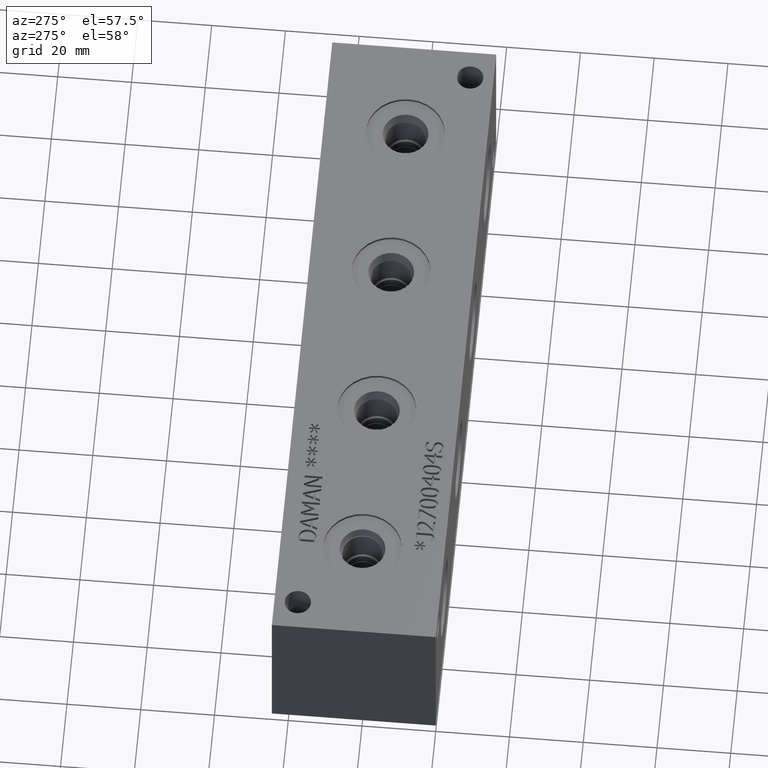
[diagram: clean part render]
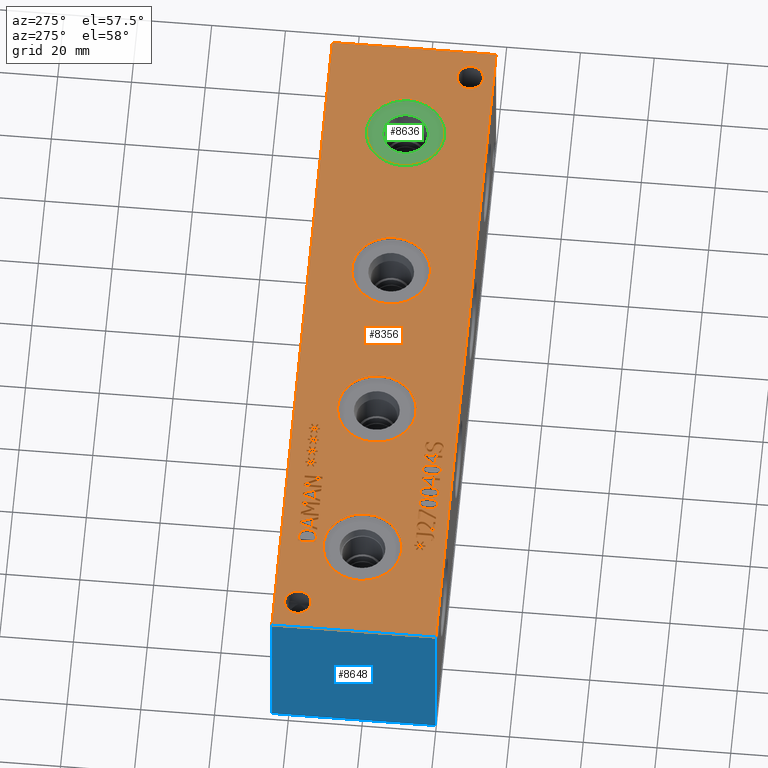
[diagram: same view with three faces highlighted in distinct colors, each labeled with its STEP entity id]
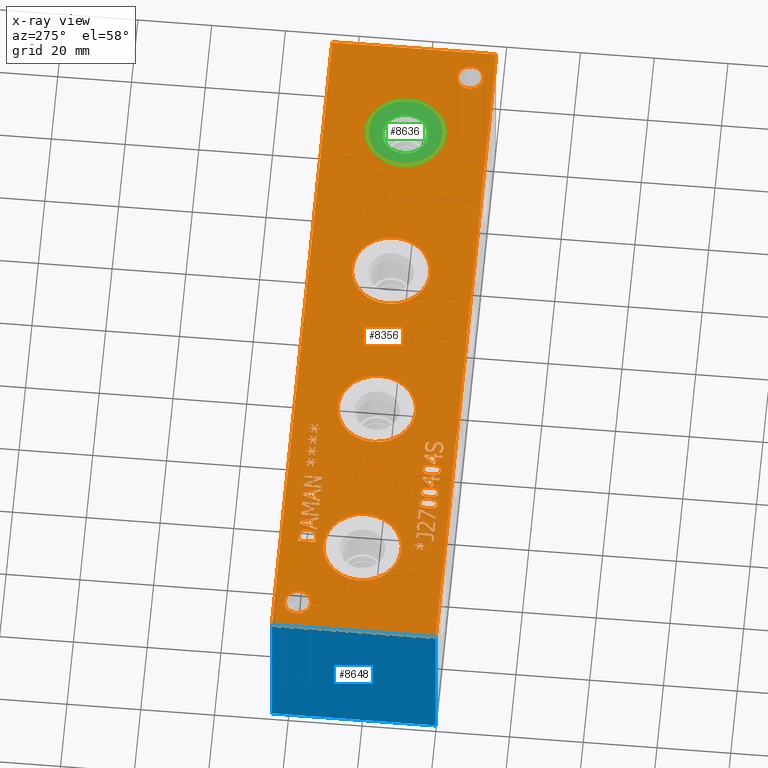
[diagram: x-ray of the same camera — body ghosted, the three highlighted faces saturated]
A machine part, auxiliary view with three faces highlighted in distinct colors.
The next image is the same camera in x-ray (body ghosted, the three faces saturated) — at least one of them is partly hidden behind the body in this view.
Their STEP definitions:

[orange] entity #8356 — the highlighted planar face has unit normal (0, 0, 1).
#169=CIRCLE('',#8749,3.5687);
#170=CIRCLE('',#8750,3.5687);
#171=CIRCLE('',#8751,3.5687);
#172=CIRCLE('',#8752,3.5687);
#173=CIRCLE('',#8753,10.6426);
#174=CIRCLE('',#8754,10.6426);
#175=CIRCLE('',#8755,10.6426);
#176=CIRCLE('',#8756,10.6426);
#177=CIRCLE('',#8757,10.6426);
#178=CIRCLE('',#8758,10.6426);
#179=CIRCLE('',#8759,10.6426);
#180=CIRCLE('',#8760,10.6426);
#401=FACE_BOUND('',#1305,.T.);
#402=FACE_BOUND('',#1306,.T.);
#403=FACE_BOUND('',#1307,.T.);
#404=FACE_BOUND('',#1308,.T.);
#405=FACE_BOUND('',#1309,.T.);
#406=FACE_BOUND('',#1310,.T.);
#407=FACE_BOUND('',#1311,.T.);
#408=FACE_BOUND('',#1312,.T.);
#409=FACE_BOUND('',#1313,.T.);
#410=FACE_BOUND('',#1314,.T.);
#411=FACE_BOUND('',#1315,.T.);
#412=FACE_BOUND('',#1316,.T.);
#413=FACE_BOUND('',#1317,.T.);
#414=FACE_BOUND('',#1318,.T.);
#415=FACE_BOUND('',#1319,.T.);
#416=FACE_BOUND('',#1320,.T.);
#417=FACE_BOUND('',#1321,.T.);
#418=FACE_BOUND('',#1322,.T.);
#419=FACE_BOUND('',#1323,.T.);
#420=FACE_BOUND('',#1324,.T.);
#421=FACE_BOUND('',#1325,.T.);
#422=FACE_BOUND('',#1326,.T.);
#423=FACE_BOUND('',#1327,.T.);
#424=FACE_BOUND('',#1328,.T.);
#425=FACE_BOUND('',#1329,.T.);
#467=B_SPLINE_CURVE_WITH_KNOTS('',2,(#11439,#11440,#11441,#11442),
 .UNSPECIFIED.,.F.,.F.,(3,1,3),(0.,1.,2.),.UNSPECIFIED.);
#469=B_SPLINE_CURVE_WITH_KNOTS('',2,(#11458,#11459,#11460,#11461),
 .UNSPECIFIED.,.F.,.F.,(3,1,3),(0.,1.,2.),.UNSPECIFIED.);
#471=B_SPLINE_CURVE_WITH_KNOTS('',2,(#11477,#11478,#11479,#11480),
 .UNSPECIFIED.,.F.,.F.,(3,1,3),(0.,1.,2.),.UNSPECIFIED.);
#473=B_SPLINE_CURVE_WITH_KNOTS('',2,(#11508,#11509,#11510,#11511),
 .UNSPECIFIED.,.F.,.F.,(3,1,3),(0.,1.,2.),.UNSPECIFIED.);
#475=B_SPLINE_CURVE_WITH_KNOTS('',2,(#11526,#11527,#11528,#11529),
 .UNSPECIFIED.,.F.,.F.,(3,1,3),(0.,1.,2.),.UNSPECIFIED.);
#477=B_SPLINE_CURVE_WITH_KNOTS('',2,(#11668,#11669,#11670,#11671),
 .UNSPECIFIED.,.F.,.F.,(3,1,3),(0.,1.,2.),.UNSPECIFIED.);
#479=B_SPLINE_CURVE_WITH_KNOTS('',2,(#11687,#11688,#11689,#11690),
 .UNSPECIFIED.,.F.,.F.,(3,1,3),(0.,1.,2.),.UNSPECIFIED.);
#481=B_SPLINE_CURVE_WITH_KNOTS('',2,(#11706,#11707,#11708,#11709),
 .UNSPECIFIED.,.F.,.F.,(3,1,3),(0.,1.,2.),.UNSPECIFIED.);
#483=B_SPLINE_CURVE_WITH_KNOTS('',2,(#11725,#11726,#11727,#11728),
 .UNSPECIFIED.,.F.,.F.,(3,1,3),(0.,1.,2.),.UNSPECIFIED.);
#485=B_SPLINE_CURVE_WITH_KNOTS('',2,(#11744,#11745,#11746,#11747),
 .UNSPECIFIED.,.F.,.F.,(3,1,3),(0.,1.,2.),.UNSPECIFIED.);
#487=B_SPLINE_CURVE_WITH_KNOTS('',2,(#11775,#11776,#11777,#11778),
 .UNSPECIFIED.,.F.,.F.,(3,1,3),(0.,1.,2.),.UNSPECIFIED.);
#489=B_SPLINE_CURVE_WITH_KNOTS('',2,(#11794,#11795,#11796,#11797),
 .UNSPECIFIED.,.F.,.F.,(3,1,3),(0.,1.,2.),.UNSPECIFIED.);
#491=B_SPLINE_CURVE_WITH_KNOTS('',2,(#11813,#11814,#11815,#11816),
 .UNSPECIFIED.,.F.,.F.,(3,1,3),(0.,1.,2.),.UNSPECIFIED.);
#493=B_SPLINE_CURVE_WITH_KNOTS('',2,(#11832,#11833,#11834,#11835),
 .UNSPECIFIED.,.F.,.F.,(3,1,3),(0.,1.,2.),.UNSPECIFIED.);
#495=B_SPLINE_CURVE_WITH_KNOTS('',2,(#11851,#11852,#11853,#11854),
 .UNSPECIFIED.,.F.,.F.,(3,1,3),(0.,1.,2.),.UNSPECIFIED.);
#497=B_SPLINE_CURVE_WITH_KNOTS('',2,(#11870,#11871,#11872,#11873),
 .UNSPECIFIED.,.F.,.F.,(3,1,3),(0.,1.,2.),.UNSPECIFIED.);
#515=B_SPLINE_CURVE_WITH_KNOTS('',2,(#12052,#12053,#12054,#12055),
 .UNSPECIFIED.,.F.,.F.,(3,1,3),(0.,1.,2.),.UNSPECIFIED.);
#517=B_SPLINE_CURVE_WITH_KNOTS('',2,(#12073,#12074,#12075,#12076),
 .UNSPECIFIED.,.F.,.F.,(3,1,3),(0.,1.,2.),.UNSPECIFIED.);
#519=B_SPLINE_CURVE_WITH_KNOTS('',2,(#12092,#12093,#12094,#12095),
 .UNSPECIFIED.,.F.,.F.,(3,1,3),(0.,1.,2.),.UNSPECIFIED.);
#521=B_SPLINE_CURVE_WITH_KNOTS('',2,(#12110,#12111,#12112,#12113),
 .UNSPECIFIED.,.F.,.F.,(3,1,3),(0.,1.,2.),.UNSPECIFIED.);
#539=B_SPLINE_CURVE_WITH_KNOTS('',2,(#12281,#12282,#12283,#12284),
 .UNSPECIFIED.,.F.,.F.,(3,1,3),(0.,1.,2.),.UNSPECIFIED.);
#541=B_SPLINE_CURVE_WITH_KNOTS('',2,(#12302,#12303,#12304,#12305),
 .UNSPECIFIED.,.F.,.F.,(3,1,3),(0.,1.,2.),.UNSPECIFIED.);
#543=B_SPLINE_CURVE_WITH_KNOTS('',2,(#12321,#12322,#12323,#12324),
 .UNSPECIFIED.,.F.,.F.,(3,1,3),(0.,1.,2.),.UNSPECIFIED.);
#545=B_SPLINE_CURVE_WITH_KNOTS('',2,(#12339,#12340,#12341,#12342),
 .UNSPECIFIED.,.F.,.F.,(3,1,3),(0.,1.,2.),.UNSPECIFIED.);
#563=B_SPLINE_CURVE_WITH_KNOTS('',2,(#12595,#12596,#12597,#12598),
 .UNSPECIFIED.,.F.,.F.,(3,1,3),(0.,1.,2.),.UNSPECIFIED.);
#565=B_SPLINE_CURVE_WITH_KNOTS('',2,(#12616,#12617,#12618,#12619),
 .UNSPECIFIED.,.F.,.F.,(3,1,3),(0.,1.,2.),.UNSPECIFIED.);
#567=B_SPLINE_CURVE_WITH_KNOTS('',2,(#12635,#12636,#12637,#12638),
 .UNSPECIFIED.,.F.,.F.,(3,1,3),(0.,1.,2.),.UNSPECIFIED.);
#569=B_SPLINE_CURVE_WITH_KNOTS('',2,(#12653,#12654,#12655,#12656),
 .UNSPECIFIED.,.F.,.F.,(3,1,3),(0.,1.,2.),.UNSPECIFIED.);
#571=B_SPLINE_CURVE_WITH_KNOTS('',2,(#12757,#12758,#12759,#12760),
 .UNSPECIFIED.,.F.,.F.,(3,1,3),(0.,1.,2.),.UNSPECIFIED.);
#573=B_SPLINE_CURVE_WITH_KNOTS('',2,(#12778,#12779,#12780,#12781),
 .UNSPECIFIED.,.F.,.F.,(3,1,3),(0.,1.,2.),.UNSPECIFIED.);
#575=B_SPLINE_CURVE_WITH_KNOTS('',2,(#12797,#12798,#12799,#12800),
 .UNSPECIFIED.,.F.,.F.,(3,1,3),(0.,1.,2.),.UNSPECIFIED.);
#577=B_SPLINE_CURVE_WITH_KNOTS('',2,(#12816,#12817,#12818,#12819),
 .UNSPECIFIED.,.F.,.F.,(3,1,3),(0.,1.,2.),.UNSPECIFIED.);
#579=B_SPLINE_CURVE_WITH_KNOTS('',2,(#12835,#12836,#12837,#12838),
 .UNSPECIFIED.,.F.,.F.,(3,1,3),(0.,1.,2.),.UNSPECIFIED.);
#581=B_SPLINE_CURVE_WITH_KNOTS('',2,(#12854,#12855,#12856,#12857),
 .UNSPECIFIED.,.F.,.F.,(3,1,3),(0.,1.,2.),.UNSPECIFIED.);
#583=B_SPLINE_CURVE_WITH_KNOTS('',2,(#12873,#12874,#12875,#12876),
 .UNSPECIFIED.,.F.,.F.,(3,1,3),(0.,1.,2.),.UNSPECIFIED.);
#585=B_SPLINE_CURVE_WITH_KNOTS('',2,(#12904,#12905,#12906,#12907),
 .UNSPECIFIED.,.F.,.F.,(3,1,3),(0.,1.,2.),.UNSPECIFIED.);
#587=B_SPLINE_CURVE_WITH_KNOTS('',2,(#12923,#12924,#12925,#12926),
 .UNSPECIFIED.,.F.,.F.,(3,1,3),(0.,1.,2.),.UNSPECIFIED.);
#589=B_SPLINE_CURVE_WITH_KNOTS('',2,(#12942,#12943,#12944,#12945),
 .UNSPECIFIED.,.F.,.F.,(3,1,3),(0.,1.,2.),.UNSPECIFIED.);
#591=B_SPLINE_CURVE_WITH_KNOTS('',2,(#12961,#12962,#12963,#12964),
 .UNSPECIFIED.,.F.,.F.,(3,1,3),(0.,1.,2.),.UNSPECIFIED.);
#593=B_SPLINE_CURVE_WITH_KNOTS('',2,(#12980,#12981,#12982,#12983),
 .UNSPECIFIED.,.F.,.F.,(3,1,3),(0.,1.,2.),.UNSPECIFIED.);
#595=B_SPLINE_CURVE_WITH_KNOTS('',2,(#12999,#13000,#13001,#13002),
 .UNSPECIFIED.,.F.,.F.,(3,1,3),(0.,1.,2.),.UNSPECIFIED.);
#597=B_SPLINE_CURVE_WITH_KNOTS('',2,(#13018,#13019,#13020,#13021),
 .UNSPECIFIED.,.F.,.F.,(3,1,3),(0.,1.,2.),.UNSPECIFIED.);
#599=B_SPLINE_CURVE_WITH_KNOTS('',2,(#13037,#13038,#13039,#13040),
 .UNSPECIFIED.,.F.,.F.,(3,1,3),(0.,1.,2.),.UNSPECIFIED.);
#601=B_SPLINE_CURVE_WITH_KNOTS('',2,(#13067,#13068,#13069,#13070),
 .UNSPECIFIED.,.F.,.F.,(3,1,3),(0.,1.,2.),.UNSPECIFIED.);
#603=B_SPLINE_CURVE_WITH_KNOTS('',2,(#13201,#13202,#13203,#13204),
 .UNSPECIFIED.,.F.,.F.,(3,1,3),(0.,1.,2.),.UNSPECIFIED.);
#604=B_SPLINE_CURVE_WITH_KNOTS('',2,(#13206,#13207,#13208,#13209),
 .UNSPECIFIED.,.F.,.F.,(3,1,3),(0.,1.,2.),.UNSPECIFIED.);
#605=B_SPLINE_CURVE_WITH_KNOTS('',2,(#13211,#13212,#13213,#13214),
 .UNSPECIFIED.,.F.,.F.,(3,1,3),(0.,1.,2.),.UNSPECIFIED.);
#606=B_SPLINE_CURVE_WITH_KNOTS('',2,(#13221,#13222,#13223,#13224),
 .UNSPECIFIED.,.F.,.F.,(3,1,3),(0.,1.,2.),.UNSPECIFIED.);
#853=FACE_OUTER_BOUND('',#1304,.T.);
#1304=EDGE_LOOP('',(#5937,#5938,#5939,#5940));
#1305=EDGE_LOOP('',(#5941,#5942,#5943,#5944,#5945,#5946,#5947,#5948,#5949,
#5950,#5951,#5952,#5953,#5954,#5955,#5956,#5957,#5958));
#1306=EDGE_LOOP('',(#5959,#5960,#5961,#5962,#5963,#5964,#5965,#5966,#5967,
#5968,#5969,#5970,#5971,#5972,#5973,#5974,#5975,#5976));
#1307=EDGE_LOOP('',(#5977,#5978,#5979,#5980,#5981,#5982,#5983,#5984,#5985,
#5986,#5987,#5988,#5989));
#1308=EDGE_LOOP('',(#5990,#5991,#5992,#5993,#5994,#5995,#5996,#5997));
#1309=EDGE_LOOP('',(#5998,#5999,#6000,#6001,#6002,#6003,#6004));
#1310=EDGE_LOOP('',(#6005,#6006,#6007,#6008,#6009,#6010,#6011,#6012));
#1311=EDGE_LOOP('',(#6013,#6014,#6015,#6016,#6017,#6018,#6019,#6020,#6021,
#6022));
#1312=EDGE_LOOP('',(#6023,#6024,#6025,#6026,#6027,#6028,#6029,#6030,#6031,
#6032,#6033,#6034,#6035,#6036,#6037,#6038,#6039,#6040));
#1313=EDGE_LOOP('',(#6041,#6042,#6043,#6044,#6045,#6046,#6047,#6048,#6049,
#6050,#6051,#6052,#6053,#6054,#6055,#6056,#6057,#6058));
#1314=EDGE_LOOP('',(#6059,#6060));
#1315=EDGE_LOOP('',(#6061,#6062));
#1316=EDGE_LOOP('',(#6063,#6064));
#1317=EDGE_LOOP('',(#6065,#6066));
#1318=EDGE_LOOP('',(#6067,#6068));
#1319=EDGE_LOOP('',(#6069,#6070));
#1320=EDGE_LOOP('',(#6071,#6072,#6073,#6074,#6075,#6076,#6077,#6078,#6079,
#6080,#6081,#6082,#6083,#6084,#6085,#6086,#6087,#6088,#6089,#6090));
#1321=EDGE_LOOP('',(#6091,#6092,#6093,#6094,#6095,#6096,#6097,#6098,#6099,
#6100,#6101));
#1322=EDGE_LOOP('',(#6102,#6103,#6104,#6105));
#1323=EDGE_LOOP('',(#6106,#6107,#6108,#6109,#6110,#6111,#6112,#6113,#6114,
#6115,#6116));
#1324=EDGE_LOOP('',(#6117,#6118,#6119,#6120));
#1325=EDGE_LOOP('',(#6121,#6122,#6123,#6124));
#1326=EDGE_LOOP('',(#6125,#6126,#6127,#6128,#6129,#6130,#6131,#6132,#6133,
#6134,#6135,#6136,#6137,#6138,#6139,#6140,#6141));
#1327=EDGE_LOOP('',(#6142,#6143,#6144,#6145,#6146,#6147,#6148,#6149,#6150,
#6151,#6152,#6153,#6154,#6155,#6156,#6157,#6158,#6159));
#1328=EDGE_LOOP('',(#6160,#6161,#6162,#6163,#6164,#6165,#6166,#6167,#6168,
#6169,#6170,#6171));
#1329=EDGE_LOOP('',(#6172,#6173,#6174,#6175,#6176,#6177,#6178));
#1668=LINE('',#11357,#2455);
#1672=LINE('',#11365,#2459);
#1675=LINE('',#11371,#2462);
#1678=LINE('',#11377,#2465);
#1681=LINE('',#11383,#2468);
#1684=LINE('',#11389,#2471);
#1687=LINE('',#11394,#2474);
#1689=LINE('',#11400,#2476);
#1693=LINE('',#11408,#2480);
#1696=LINE('',#11414,#2483);
#1699=LINE('',#11420,#2486);
#1702=LINE('',#11426,#2489);
#1708=LINE('',#11489,#2495);
#1711=LINE('',#11495,#2498);
#1715=LINE('',#11538,#2502);
#1719=LINE('',#11546,#2506);
#1722=LINE('',#11552,#2509);
#1725=LINE('',#11558,#2512);
#1728=LINE('',#11564,#2515);
#1731=LINE('',#11570,#2518);
#1734=LINE('',#11576,#2521);
#1737=LINE('',#11582,#2524);
#1740=LINE('',#11588,#2527);
#1743=LINE('',#11594,#2530);
#1746=LINE('',#11600,#2533);
#1749=LINE('',#11606,#2536);
#1752=LINE('',#11612,#2539);
#1755=LINE('',#11618,#2542);
#1758=LINE('',#11624,#2545);
#1761=LINE('',#11630,#2548);
#1764=LINE('',#11636,#2551);
#1767=LINE('',#11641,#2554);
#1769=LINE('',#11647,#2556);
#1773=LINE('',#11655,#2560);
#1781=LINE('',#11756,#2568);
#1784=LINE('',#11762,#2571);
#1793=LINE('',#11882,#2580);
#1796=LINE('',#11887,#2583);
#1831=LINE('',#12369,#2618);
#1835=LINE('',#12377,#2622);
#1838=LINE('',#12383,#2625);
#1841=LINE('',#12389,#2628);
#1844=LINE('',#12395,#2631);
#1847=LINE('',#12401,#2634);
#1850=LINE('',#12407,#2637);
#1853=LINE('',#12413,#2640);
#1856=LINE('',#12419,#2643);
#1859=LINE('',#12425,#2646);
#1862=LINE('',#12430,#2649);
#1885=LINE('',#12683,#2672);
#1889=LINE('',#12691,#2676);
#1892=LINE('',#12697,#2679);
#1895=LINE('',#12703,#2682);
#1898=LINE('',#12709,#2685);
#1901=LINE('',#12715,#2688);
#1904=LINE('',#12721,#2691);
#1907=LINE('',#12727,#2694);
#1910=LINE('',#12733,#2697);
#1913=LINE('',#12739,#2700);
#1916=LINE('',#12744,#2703);
#1926=LINE('',#12885,#2713);
#1929=LINE('',#12891,#2716);
#1940=LINE('',#13049,#2727);
#1943=LINE('',#13055,#2730);
#1946=LINE('',#13079,#2733);
#1947=LINE('',#13081,#2734);
#1948=LINE('',#13083,#2735);
#1949=LINE('',#13084,#2736);
#1950=LINE('',#13087,#2737);
#1951=LINE('',#13089,#2738);
#1952=LINE('',#13091,#2739);
#1953=LINE('',#13093,#2740);
#1954=LINE('',#13095,#2741);
#1955=LINE('',#13097,#2742);
#1956=LINE('',#13099,#2743);
#1957=LINE('',#13101,#2744);
#1958=LINE('',#13103,#2745);
#1959=LINE('',#13105,#2746);
#1960=LINE('',#13107,#2747);
#1961=LINE('',#13109,#2748);
#1962=LINE('',#13111,#2749);
#1963=LINE('',#13113,#2750);
#1964=LINE('',#13115,#2751);
#1965=LINE('',#13117,#2752);
#1966=LINE('',#13119,#2753);
#1967=LINE('',#13120,#2754);
#1968=LINE('',#13123,#2755);
#1969=LINE('',#13125,#2756);
#1970=LINE('',#13127,#2757);
#1971=LINE('',#13129,#2758);
#1972=LINE('',#13131,#2759);
#1973=LINE('',#13133,#2760);
#1974=LINE('',#13135,#2761);
#1975=LINE('',#13137,#2762);
#1976=LINE('',#13139,#2763);
#1977=LINE('',#13141,#2764);
#1978=LINE('',#13143,#2765);
#1979=LINE('',#13145,#2766);
#1980=LINE('',#13147,#2767);
#1981=LINE('',#13149,#2768);
#1982=LINE('',#13151,#2769);
#1983=LINE('',#13153,#2770);
#1984=LINE('',#13155,#2771);
#1985=LINE('',#13156,#2772);
#1986=LINE('',#13159,#2773);
#1987=LINE('',#13161,#2774);
#1988=LINE('',#13163,#2775);
#1989=LINE('',#13165,#2776);
#1990=LINE('',#13167,#2777);
#1991=LINE('',#13169,#2778);
#1992=LINE('',#13171,#2779);
#1993=LINE('',#13173,#2780);
#1994=LINE('',#13175,#2781);
#1995=LINE('',#13177,#2782);
#1996=LINE('',#13179,#2783);
#1997=LINE('',#13181,#2784);
#1998=LINE('',#13182,#2785);
#1999=LINE('',#13185,#2786);
#2000=LINE('',#13187,#2787);
#2001=LINE('',#13189,#2788);
#2002=LINE('',#13191,#2789);
#2003=LINE('',#13193,#2790);
#2004=LINE('',#13195,#2791);
#2005=LINE('',#13197,#2792);
#2006=LINE('',#13198,#2793);
#2007=LINE('',#13216,#2794);
#2008=LINE('',#13218,#2795);
#2009=LINE('',#13220,#2796);
#2010=LINE('',#13227,#2797);
#2011=LINE('',#13229,#2798);
#2012=LINE('',#13231,#2799);
#2013=LINE('',#13233,#2800);
#2014=LINE('',#13235,#2801);
#2015=LINE('',#13237,#2802);
#2016=LINE('',#13239,#2803);
#2017=LINE('',#13240,#2804);
#2018=LINE('',#13243,#2805);
#2019=LINE('',#13245,#2806);
#2020=LINE('',#13247,#2807);
#2021=LINE('',#13249,#2808);
#2022=LINE('',#13251,#2809);
#2023=LINE('',#13253,#2810);
#2024=LINE('',#13255,#2811);
#2025=LINE('',#13257,#2812);
#2026=LINE('',#13259,#2813);
#2027=LINE('',#13260,#2814);
#2028=LINE('',#13263,#2815);
#2029=LINE('',#13265,#2816);
#2030=LINE('',#13267,#2817);
#2031=LINE('',#13269,#2818);
#2032=LINE('',#13271,#2819);
#2033=LINE('',#13273,#2820);
#2034=LINE('',#13275,#2821);
#2035=LINE('',#13277,#2822);
#2036=LINE('',#13279,#2823);
#2037=LINE('',#13281,#2824);
#2038=LINE('',#13283,#2825);
#2039=LINE('',#13285,#2826);
#2040=LINE('',#13287,#2827);
#2041=LINE('',#13289,#2828);
#2042=LINE('',#13291,#2829);
#2043=LINE('',#13293,#2830);
#2044=LINE('',#13295,#2831);
#2045=LINE('',#13296,#2832);
#2046=LINE('',#13299,#2833);
#2047=LINE('',#13301,#2834);
#2048=LINE('',#13303,#2835);
#2049=LINE('',#13305,#2836);
#2050=LINE('',#13307,#2837);
#2051=LINE('',#13309,#2838);
#2052=LINE('',#13311,#2839);
#2053=LINE('',#13313,#2840);
#2054=LINE('',#13315,#2841);
#2055=LINE('',#13317,#2842);
#2056=LINE('',#13319,#2843);
#2057=LINE('',#13321,#2844);
#2058=LINE('',#13323,#2845);
#2059=LINE('',#13325,#2846);
#2060=LINE('',#13327,#2847);
#2061=LINE('',#13329,#2848);
#2062=LINE('',#13331,#2849);
#2063=LINE('',#13332,#2850);
#2455=VECTOR('',#9304,10.);
#2459=VECTOR('',#9310,10.);
#2462=VECTOR('',#9315,10.);
#2465=VECTOR('',#9320,10.);
#2468=VECTOR('',#9325,10.);
#2471=VECTOR('',#9330,10.);
#2474=VECTOR('',#9335,10.);
#2476=VECTOR('',#9341,10.);
#2480=VECTOR('',#9347,10.);
#2483=VECTOR('',#9352,10.);
#2486=VECTOR('',#9357,10.);
#2489=VECTOR('',#9362,10.);
#2495=VECTOR('',#9370,10.);
#2498=VECTOR('',#9375,10.);
#2502=VECTOR('',#9383,10.);
#2506=VECTOR('',#9389,10.);
#2509=VECTOR('',#9394,10.);
#2512=VECTOR('',#9399,10.);
#2515=VECTOR('',#9404,10.);
#2518=VECTOR('',#9409,10.);
#2521=VECTOR('',#9414,10.);
#2524=VECTOR('',#9419,10.);
#2527=VECTOR('',#9424,10.);
#2530=VECTOR('',#9429,10.);
#2533=VECTOR('',#9434,10.);
#2536=VECTOR('',#9439,10.);
#2539=VECTOR('',#9444,10.);
#2542=VECTOR('',#9449,10.);
#2545=VECTOR('',#9454,10.);
#2548=VECTOR('',#9459,10.);
#2551=VECTOR('',#9464,10.);
#2554=VECTOR('',#9469,10.);
#2556=VECTOR('',#9475,10.);
#2560=VECTOR('',#9481,10.);
#2568=VECTOR('',#9491,10.);
#2571=VECTOR('',#9496,10.);
#2580=VECTOR('',#9507,10.);
#2583=VECTOR('',#9512,10.);
#2618=VECTOR('',#9561,10.);
#2622=VECTOR('',#9567,10.);
#2625=VECTOR('',#9572,10.);
#2628=VECTOR('',#9577,10.);
#2631=VECTOR('',#9582,10.);
#2634=VECTOR('',#9587,10.);
#2637=VECTOR('',#9592,10.);
#2640=VECTOR('',#9597,10.);
#2643=VECTOR('',#9602,10.);
#2646=VECTOR('',#9607,10.);
#2649=VECTOR('',#9612,10.);
#2672=VECTOR('',#9647,10.);
#2676=VECTOR('',#9653,10.);
#2679=VECTOR('',#9658,10.);
#2682=VECTOR('',#9663,10.);
#2685=VECTOR('',#9668,10.);
#2688=VECTOR('',#9673,10.);
#2691=VECTOR('',#9678,10.);
#2694=VECTOR('',#9683,10.);
#2697=VECTOR('',#9688,10.);
#2700=VECTOR('',#9693,10.);
#2703=VECTOR('',#9698,10.);
#2713=VECTOR('',#9712,10.);
#2716=VECTOR('',#9717,10.);
#2727=VECTOR('',#9730,10.);
#2730=VECTOR('',#9735,10.);
#2733=VECTOR('',#9742,10.);
#2734=VECTOR('',#9743,10.);
#2735=VECTOR('',#9744,10.);
#2736=VECTOR('',#9745,10.);
#2737=VECTOR('',#9746,10.);
#2738=VECTOR('',#9747,10.);
#2739=VECTOR('',#9748,10.);
#2740=VECTOR('',#9749,10.);
#2741=VECTOR('',#9750,10.);
#2742=VECTOR('',#9751,10.);
#2743=VECTOR('',#9752,10.);
#2744=VECTOR('',#9753,10.);
#2745=VECTOR('',#9754,10.);
#2746=VECTOR('',#9755,10.);
#2747=VECTOR('',#9756,10.);
#2748=VECTOR('',#9757,10.);
#2749=VECTOR('',#9758,10.);
#2750=VECTOR('',#9759,10.);
#2751=VECTOR('',#9760,10.);
#2752=VECTOR('',#9761,10.);
#2753=VECTOR('',#9762,10.);
#2754=VECTOR('',#9763,10.);
#2755=VECTOR('',#9764,10.);
#2756=VECTOR('',#9765,10.);
#2757=VECTOR('',#9766,10.);
#2758=VECTOR('',#9767,10.);
#2759=VECTOR('',#9768,10.);
#2760=VECTOR('',#9769,10.);
#2761=VECTOR('',#9770,10.);
#2762=VECTOR('',#9771,10.);
#2763=VECTOR('',#9772,10.);
#2764=VECTOR('',#9773,10.);
#2765=VECTOR('',#9774,10.);
#2766=VECTOR('',#9775,10.);
#2767=VECTOR('',#9776,10.);
#2768=VECTOR('',#9777,10.);
#2769=VECTOR('',#9778,10.);
#2770=VECTOR('',#9779,10.);
#2771=VECTOR('',#9780,10.);
#2772=VECTOR('',#9781,10.);
#2773=VECTOR('',#9782,10.);
#2774=VECTOR('',#9783,10.);
#2775=VECTOR('',#9784,10.);
#2776=VECTOR('',#9785,10.);
#2777=VECTOR('',#9786,10.);
#2778=VECTOR('',#9787,10.);
#2779=VECTOR('',#9788,10.);
#2780=VECTOR('',#9789,10.);
#2781=VECTOR('',#9790,10.);
#2782=VECTOR('',#9791,10.);
#2783=VECTOR('',#9792,10.);
#2784=VECTOR('',#9793,10.);
#2785=VECTOR('',#9794,10.);
#2786=VECTOR('',#9795,10.);
#2787=VECTOR('',#9796,10.);
#2788=VECTOR('',#9797,10.);
#2789=VECTOR('',#9798,10.);
#2790=VECTOR('',#9799,10.);
#2791=VECTOR('',#9800,10.);
#2792=VECTOR('',#9801,10.);
#2793=VECTOR('',#9802,10.);
#2794=VECTOR('',#9803,10.);
#2795=VECTOR('',#9804,10.);
#2796=VECTOR('',#9805,10.);
#2797=VECTOR('',#9806,10.);
#2798=VECTOR('',#9807,10.);
#2799=VECTOR('',#9808,10.);
#2800=VECTOR('',#9809,10.);
#2801=VECTOR('',#9810,10.);
#2802=VECTOR('',#9811,10.);
#2803=VECTOR('',#9812,10.);
#2804=VECTOR('',#9813,10.);
#2805=VECTOR('',#9814,10.);
#2806=VECTOR('',#9815,10.);
#2807=VECTOR('',#9816,10.);
#2808=VECTOR('',#9817,10.);
#2809=VECTOR('',#9818,10.);
#2810=VECTOR('',#9819,10.);
#2811=VECTOR('',#9820,10.);
#2812=VECTOR('',#9821,10.);
#2813=VECTOR('',#9822,10.);
#2814=VECTOR('',#9823,10.);
#2815=VECTOR('',#9824,10.);
#2816=VECTOR('',#9825,10.);
#2817=VECTOR('',#9826,10.);
#2818=VECTOR('',#9827,10.);
#2819=VECTOR('',#9828,10.);
#2820=VECTOR('',#9829,10.);
#2821=VECTOR('',#9830,10.);
#2822=VECTOR('',#9831,10.);
#2823=VECTOR('',#9832,10.);
#2824=VECTOR('',#9833,10.);
#2825=VECTOR('',#9834,10.);
#2826=VECTOR('',#9835,10.);
#2827=VECTOR('',#9836,10.);
#2828=VECTOR('',#9837,10.);
#2829=VECTOR('',#9838,10.);
#2830=VECTOR('',#9839,10.);
#2831=VECTOR('',#9840,10.);
#2832=VECTOR('',#9841,10.);
#2833=VECTOR('',#9842,10.);
#2834=VECTOR('',#9843,10.);
#2835=VECTOR('',#9844,10.);
#2836=VECTOR('',#9845,10.);
#2837=VECTOR('',#9846,10.);
#2838=VECTOR('',#9847,10.);
#2839=VECTOR('',#9848,10.);
#2840=VECTOR('',#9849,10.);
#2841=VECTOR('',#9850,10.);
#2842=VECTOR('',#9851,10.);
#2843=VECTOR('',#9852,10.);
#2844=VECTOR('',#9853,10.);
#2845=VECTOR('',#9854,10.);
#2846=VECTOR('',#9855,10.);
#2847=VECTOR('',#9856,10.);
#2848=VECTOR('',#9857,10.);
#2849=VECTOR('',#9858,10.);
#2850=VECTOR('',#9859,10.);
#3242=VERTEX_POINT('',#11355);
#3243=VERTEX_POINT('',#11356);
#3246=VERTEX_POINT('',#11364);
#3248=VERTEX_POINT('',#11370);
#3250=VERTEX_POINT('',#11376);
#3252=VERTEX_POINT('',#11382);
#3254=VERTEX_POINT('',#11388);
#3256=VERTEX_POINT('',#11398);
#3257=VERTEX_POINT('',#11399);
#3260=VERTEX_POINT('',#11407);
#3262=VERTEX_POINT('',#11413);
#3264=VERTEX_POINT('',#11419);
#3266=VERTEX_POINT('',#11425);
#3268=VERTEX_POINT('',#11438);
#3270=VERTEX_POINT('',#11457);
#3272=VERTEX_POINT('',#11476);
#3274=VERTEX_POINT('',#11488);
#3276=VERTEX_POINT('',#11494);
#3278=VERTEX_POINT('',#11507);
#3280=VERTEX_POINT('',#11536);
#3281=VERTEX_POINT('',#11537);
#3284=VERTEX_POINT('',#11545);
#3286=VERTEX_POINT('',#11551);
#3288=VERTEX_POINT('',#11557);
#3290=VERTEX_POINT('',#11563);
#3292=VERTEX_POINT('',#11569);
#3294=VERTEX_POINT('',#11575);
#3296=VERTEX_POINT('',#11581);
#3298=VERTEX_POINT('',#11587);
#3300=VERTEX_POINT('',#11593);
#3302=VERTEX_POINT('',#11599);
#3304=VERTEX_POINT('',#11605);
#3306=VERTEX_POINT('',#11611);
#3308=VERTEX_POINT('',#11617);
#3310=VERTEX_POINT('',#11623);
#3312=VERTEX_POINT('',#11629);
#3314=VERTEX_POINT('',#11635);
#3316=VERTEX_POINT('',#11645);
#3317=VERTEX_POINT('',#11646);
#3320=VERTEX_POINT('',#11654);
#3322=VERTEX_POINT('',#11667);
#3324=VERTEX_POINT('',#11686);
#3326=VERTEX_POINT('',#11705);
#3328=VERTEX_POINT('',#11724);
#3330=VERTEX_POINT('',#11743);
#3332=VERTEX_POINT('',#11755);
#3334=VERTEX_POINT('',#11761);
#3336=VERTEX_POINT('',#11774);
#3338=VERTEX_POINT('',#11793);
#3340=VERTEX_POINT('',#11812);
#3342=VERTEX_POINT('',#11831);
#3344=VERTEX_POINT('',#11850);
#3346=VERTEX_POINT('',#11869);
#3348=VERTEX_POINT('',#11881);
#3366=VERTEX_POINT('',#12050);
#3367=VERTEX_POINT('',#12051);
#3370=VERTEX_POINT('',#12072);
#3372=VERTEX_POINT('',#12091);
#3390=VERTEX_POINT('',#12279);
#3391=VERTEX_POINT('',#12280);
#3394=VERTEX_POINT('',#12301);
#3396=VERTEX_POINT('',#12320);
#3404=VERTEX_POINT('',#12367);
#3405=VERTEX_POINT('',#12368);
#3408=VERTEX_POINT('',#12376);
#3410=VERTEX_POINT('',#12382);
#3412=VERTEX_POINT('',#12388);
#3414=VERTEX_POINT('',#12394);
#3416=VERTEX_POINT('',#12400);
#3418=VERTEX_POINT('',#12406);
#3420=VERTEX_POINT('',#12412);
#3422=VERTEX_POINT('',#12418);
#3424=VERTEX_POINT('',#12424);
#3442=VERTEX_POINT('',#12593);
#3443=VERTEX_POINT('',#12594);
#3446=VERTEX_POINT('',#12615);
#3448=VERTEX_POINT('',#12634);
#3456=VERTEX_POINT('',#12681);
#3457=VERTEX_POINT('',#12682);
#3460=VERTEX_POINT('',#12690);
#3462=VERTEX_POINT('',#12696);
#3464=VERTEX_POINT('',#12702);
#3466=VERTEX_POINT('',#12708);
#3468=VERTEX_POINT('',#12714);
#3470=VERTEX_POINT('',#12720);
#3472=VERTEX_POINT('',#12726);
#3474=VERTEX_POINT('',#12732);
#3476=VERTEX_POINT('',#12738);
#3478=VERTEX_POINT('',#12755);
#3479=VERTEX_POINT('',#12756);
#3482=VERTEX_POINT('',#12777);
#3484=VERTEX_POINT('',#12796);
#3486=VERTEX_POINT('',#12815);
#3488=VERTEX_POINT('',#12834);
#3490=VERTEX_POINT('',#12853);
#3492=VERTEX_POINT('',#12872);
#3494=VERTEX_POINT('',#12884);
#3496=VERTEX_POINT('',#12890);
#3498=VERTEX_POINT('',#12903);
#3500=VERTEX_POINT('',#12922);
#3502=VERTEX_POINT('',#12941);
#3504=VERTEX_POINT('',#12960);
#3506=VERTEX_POINT('',#12979);
#3508=VERTEX_POINT('',#12998);
#3510=VERTEX_POINT('',#13017);
#3512=VERTEX_POINT('',#13036);
#3514=VERTEX_POINT('',#13048);
#3516=VERTEX_POINT('',#13054);
#3518=VERTEX_POINT('',#13077);
#3519=VERTEX_POINT('',#13078);
#3520=VERTEX_POINT('',#13080);
#3521=VERTEX_POINT('',#13082);
#3522=VERTEX_POINT('',#13085);
#3523=VERTEX_POINT('',#13086);
#3524=VERTEX_POINT('',#13088);
#3525=VERTEX_POINT('',#13090);
#3526=VERTEX_POINT('',#13092);
#3527=VERTEX_POINT('',#13094);
#3528=VERTEX_POINT('',#13096);
#3529=VERTEX_POINT('',#13098);
#3530=VERTEX_POINT('',#13100);
#3531=VERTEX_POINT('',#13102);
#3532=VERTEX_POINT('',#13104);
#3533=VERTEX_POINT('',#13106);
#3534=VERTEX_POINT('',#13108);
#3535=VERTEX_POINT('',#13110);
#3536=VERTEX_POINT('',#13112);
#3537=VERTEX_POINT('',#13114);
#3538=VERTEX_POINT('',#13116);
#3539=VERTEX_POINT('',#13118);
#3540=VERTEX_POINT('',#13121);
#3541=VERTEX_POINT('',#13122);
#3542=VERTEX_POINT('',#13124);
#3543=VERTEX_POINT('',#13126);
#3544=VERTEX_POINT('',#13128);
#3545=VERTEX_POINT('',#13130);
#3546=VERTEX_POINT('',#13132);
#3547=VERTEX_POINT('',#13134);
#3548=VERTEX_POINT('',#13136);
#3549=VERTEX_POINT('',#13138);
#3550=VERTEX_POINT('',#13140);
#3551=VERTEX_POINT('',#13142);
#3552=VERTEX_POINT('',#13144);
#3553=VERTEX_POINT('',#13146);
#3554=VERTEX_POINT('',#13148);
#3555=VERTEX_POINT('',#13150);
#3556=VERTEX_POINT('',#13152);
#3557=VERTEX_POINT('',#13154);
#3558=VERTEX_POINT('',#13157);
#3559=VERTEX_POINT('',#13158);
#3560=VERTEX_POINT('',#13160);
#3561=VERTEX_POINT('',#13162);
#3562=VERTEX_POINT('',#13164);
#3563=VERTEX_POINT('',#13166);
#3564=VERTEX_POINT('',#13168);
#3565=VERTEX_POINT('',#13170);
#3566=VERTEX_POINT('',#13172);
#3567=VERTEX_POINT('',#13174);
#3568=VERTEX_POINT('',#13176);
#3569=VERTEX_POINT('',#13178);
#3570=VERTEX_POINT('',#13180);
#3571=VERTEX_POINT('',#13183);
#3572=VERTEX_POINT('',#13184);
#3573=VERTEX_POINT('',#13186);
#3574=VERTEX_POINT('',#13188);
#3575=VERTEX_POINT('',#13190);
#3576=VERTEX_POINT('',#13192);
#3577=VERTEX_POINT('',#13194);
#3578=VERTEX_POINT('',#13196);
#3579=VERTEX_POINT('',#13199);
#3580=VERTEX_POINT('',#13200);
#3581=VERTEX_POINT('',#13205);
#3582=VERTEX_POINT('',#13210);
#3583=VERTEX_POINT('',#13215);
#3584=VERTEX_POINT('',#13217);
#3585=VERTEX_POINT('',#13219);
#3586=VERTEX_POINT('',#13225);
#3587=VERTEX_POINT('',#13226);
#3588=VERTEX_POINT('',#13228);
#3589=VERTEX_POINT('',#13230);
#3590=VERTEX_POINT('',#13232);
#3591=VERTEX_POINT('',#13234);
#3592=VERTEX_POINT('',#13236);
#3593=VERTEX_POINT('',#13238);
#3594=VERTEX_POINT('',#13241);
#3595=VERTEX_POINT('',#13242);
#3596=VERTEX_POINT('',#13244);
#3597=VERTEX_POINT('',#13246);
#3598=VERTEX_POINT('',#13248);
#3599=VERTEX_POINT('',#13250);
#3600=VERTEX_POINT('',#13252);
#3601=VERTEX_POINT('',#13254);
#3602=VERTEX_POINT('',#13256);
#3603=VERTEX_POINT('',#13258);
#3604=VERTEX_POINT('',#13261);
#3605=VERTEX_POINT('',#13262);
#3606=VERTEX_POINT('',#13264);
#3607=VERTEX_POINT('',#13266);
#3608=VERTEX_POINT('',#13268);
#3609=VERTEX_POINT('',#13270);
#3610=VERTEX_POINT('',#13272);
#3611=VERTEX_POINT('',#13274);
#3612=VERTEX_POINT('',#13276);
#3613=VERTEX_POINT('',#13278);
#3614=VERTEX_POINT('',#13280);
#3615=VERTEX_POINT('',#13282);
#3616=VERTEX_POINT('',#13284);
#3617=VERTEX_POINT('',#13286);
#3618=VERTEX_POINT('',#13288);
#3619=VERTEX_POINT('',#13290);
#3620=VERTEX_POINT('',#13292);
#3621=VERTEX_POINT('',#13294);
#3622=VERTEX_POINT('',#13297);
#3623=VERTEX_POINT('',#13298);
#3624=VERTEX_POINT('',#13300);
#3625=VERTEX_POINT('',#13302);
#3626=VERTEX_POINT('',#13304);
#3627=VERTEX_POINT('',#13306);
#3628=VERTEX_POINT('',#13308);
#3629=VERTEX_POINT('',#13310);
#3630=VERTEX_POINT('',#13312);
#3631=VERTEX_POINT('',#13314);
#3632=VERTEX_POINT('',#13316);
#3633=VERTEX_POINT('',#13318);
#3634=VERTEX_POINT('',#13320);
#3635=VERTEX_POINT('',#13322);
#3636=VERTEX_POINT('',#13324);
#3637=VERTEX_POINT('',#13326);
#3638=VERTEX_POINT('',#13328);
#3639=VERTEX_POINT('',#13330);
#3640=VERTEX_POINT('',#13333);
#3641=VERTEX_POINT('',#13334);
#3642=VERTEX_POINT('',#13337);
#3643=VERTEX_POINT('',#13338);
#3644=VERTEX_POINT('',#13341);
#3645=VERTEX_POINT('',#13342);
#3646=VERTEX_POINT('',#13345);
#3647=VERTEX_POINT('',#13346);
#3648=VERTEX_POINT('',#13349);
#3649=VERTEX_POINT('',#13350);
#3650=VERTEX_POINT('',#13353);
#3651=VERTEX_POINT('',#13354);
#4036=EDGE_CURVE('',#3242,#3243,#1668,.T.);
#4040=EDGE_CURVE('',#3246,#3242,#1672,.T.);
#4043=EDGE_CURVE('',#3248,#3246,#1675,.T.);
#4046=EDGE_CURVE('',#3250,#3248,#1678,.T.);
#4049=EDGE_CURVE('',#3252,#3250,#1681,.T.);
#4052=EDGE_CURVE('',#3254,#3252,#1684,.T.);
#4055=EDGE_CURVE('',#3243,#3254,#1687,.T.);
#4057=EDGE_CURVE('',#3256,#3257,#1689,.T.);
#4061=EDGE_CURVE('',#3260,#3256,#1693,.T.);
#4064=EDGE_CURVE('',#3262,#3260,#1696,.T.);
#4067=EDGE_CURVE('',#3264,#3262,#1699,.T.);
#4070=EDGE_CURVE('',#3266,#3264,#1702,.T.);
#4073=EDGE_CURVE('',#3268,#3266,#467,.T.);
#4076=EDGE_CURVE('',#3270,#3268,#469,.T.);
#4079=EDGE_CURVE('',#3272,#3270,#471,.T.);
#4082=EDGE_CURVE('',#3274,#3272,#1708,.T.);
#4085=EDGE_CURVE('',#3276,#3274,#1711,.T.);
#4088=EDGE_CURVE('',#3278,#3276,#473,.T.);
#4091=EDGE_CURVE('',#3257,#3278,#475,.T.);
#4093=EDGE_CURVE('',#3280,#3281,#1715,.T.);
#4097=EDGE_CURVE('',#3284,#3280,#1719,.T.);
#4100=EDGE_CURVE('',#3286,#3284,#1722,.T.);
#4103=EDGE_CURVE('',#3288,#3286,#1725,.T.);
#4106=EDGE_CURVE('',#3290,#3288,#1728,.T.);
#4109=EDGE_CURVE('',#3292,#3290,#1731,.T.);
#4112=EDGE_CURVE('',#3294,#3292,#1734,.T.);
#4115=EDGE_CURVE('',#3296,#3294,#1737,.T.);
#4118=EDGE_CURVE('',#3298,#3296,#1740,.T.);
#4121=EDGE_CURVE('',#3300,#3298,#1743,.T.);
#4124=EDGE_CURVE('',#3302,#3300,#1746,.T.);
#4127=EDGE_CURVE('',#3304,#3302,#1749,.T.);
#4130=EDGE_CURVE('',#3306,#3304,#1752,.T.);
#4133=EDGE_CURVE('',#3308,#3306,#1755,.T.);
#4136=EDGE_CURVE('',#3310,#3308,#1758,.T.);
#4139=EDGE_CURVE('',#3312,#3310,#1761,.T.);
#4142=EDGE_CURVE('',#3314,#3312,#1764,.T.);
#4145=EDGE_CURVE('',#3281,#3314,#1767,.T.);
#4147=EDGE_CURVE('',#3316,#3317,#1769,.T.);
#4151=EDGE_CURVE('',#3320,#3316,#1773,.T.);
#4154=EDGE_CURVE('',#3322,#3320,#477,.T.);
#4157=EDGE_CURVE('',#3324,#3322,#479,.T.);
#4160=EDGE_CURVE('',#3326,#3324,#481,.T.);
#4163=EDGE_CURVE('',#3328,#3326,#483,.T.);
#4166=EDGE_CURVE('',#3330,#3328,#485,.T.);
#4169=EDGE_CURVE('',#3332,#3330,#1781,.T.);
#4172=EDGE_CURVE('',#3334,#3332,#1784,.T.);
#4175=EDGE_CURVE('',#3336,#3334,#487,.T.);
#4178=EDGE_CURVE('',#3338,#3336,#489,.T.);
#4181=EDGE_CURVE('',#3340,#3338,#491,.T.);
#4184=EDGE_CURVE('',#3342,#3340,#493,.T.);
#4187=EDGE_CURVE('',#3344,#3342,#495,.T.);
#4190=EDGE_CURVE('',#3346,#3344,#497,.T.);
#4193=EDGE_CURVE('',#3348,#3346,#1793,.T.);
#4196=EDGE_CURVE('',#3317,#3348,#1796,.T.);
#4222=EDGE_CURVE('',#3366,#3367,#515,.T.);
#4226=EDGE_CURVE('',#3370,#3366,#517,.T.);
#4229=EDGE_CURVE('',#3372,#3370,#519,.T.);
#4232=EDGE_CURVE('',#3367,#3372,#521,.T.);
#4258=EDGE_CURVE('',#3390,#3391,#539,.T.);
#4262=EDGE_CURVE('',#3394,#3390,#541,.T.);
#4265=EDGE_CURVE('',#3396,#3394,#543,.T.);
#4268=EDGE_CURVE('',#3391,#3396,#545,.T.);
#4279=EDGE_CURVE('',#3404,#3405,#1831,.T.);
#4283=EDGE_CURVE('',#3408,#3404,#1835,.T.);
#4286=EDGE_CURVE('',#3410,#3408,#1838,.T.);
#4289=EDGE_CURVE('',#3412,#3410,#1841,.T.);
#4292=EDGE_CURVE('',#3414,#3412,#1844,.T.);
#4295=EDGE_CURVE('',#3416,#3414,#1847,.T.);
#4298=EDGE_CURVE('',#3418,#3416,#1850,.T.);
#4301=EDGE_CURVE('',#3420,#3418,#1853,.T.);
#4304=EDGE_CURVE('',#3422,#3420,#1856,.T.);
#4307=EDGE_CURVE('',#3424,#3422,#1859,.T.);
#4310=EDGE_CURVE('',#3405,#3424,#1862,.T.);
#4336=EDGE_CURVE('',#3442,#3443,#563,.T.);
#4340=EDGE_CURVE('',#3446,#3442,#565,.T.);
#4343=EDGE_CURVE('',#3448,#3446,#567,.T.);
#4346=EDGE_CURVE('',#3443,#3448,#569,.T.);
#4357=EDGE_CURVE('',#3456,#3457,#1885,.T.);
#4361=EDGE_CURVE('',#3460,#3456,#1889,.T.);
#4364=EDGE_CURVE('',#3462,#3460,#1892,.T.);
#4367=EDGE_CURVE('',#3464,#3462,#1895,.T.);
#4370=EDGE_CURVE('',#3466,#3464,#1898,.T.);
#4373=EDGE_CURVE('',#3468,#3466,#1901,.T.);
#4376=EDGE_CURVE('',#3470,#3468,#1904,.T.);
#4379=EDGE_CURVE('',#3472,#3470,#1907,.T.);
#4382=EDGE_CURVE('',#3474,#3472,#1910,.T.);
#4385=EDGE_CURVE('',#3476,#3474,#1913,.T.);
#4388=EDGE_CURVE('',#3457,#3476,#1916,.T.);
#4390=EDGE_CURVE('',#3478,#3479,#571,.T.);
#4394=EDGE_CURVE('',#3482,#3478,#573,.T.);
#4397=EDGE_CURVE('',#3484,#3482,#575,.T.);
#4400=EDGE_CURVE('',#3486,#3484,#577,.T.);
#4403=EDGE_CURVE('',#3488,#3486,#579,.T.);
#4406=EDGE_CURVE('',#3490,#3488,#581,.T.);
#4409=EDGE_CURVE('',#3492,#3490,#583,.T.);
#4412=EDGE_CURVE('',#3494,#3492,#1926,.T.);
#4415=EDGE_CURVE('',#3496,#3494,#1929,.T.);
#4418=EDGE_CURVE('',#3498,#3496,#585,.T.);
#4421=EDGE_CURVE('',#3500,#3498,#587,.T.);
#4424=EDGE_CURVE('',#3502,#3500,#589,.T.);
#4427=EDGE_CURVE('',#3504,#3502,#591,.T.);
#4430=EDGE_CURVE('',#3506,#3504,#593,.T.);
#4433=EDGE_CURVE('',#3508,#3506,#595,.T.);
#4436=EDGE_CURVE('',#3510,#3508,#597,.T.);
#4439=EDGE_CURVE('',#3512,#3510,#599,.T.);
#4442=EDGE_CURVE('',#3514,#3512,#1940,.T.);
#4445=EDGE_CURVE('',#3516,#3514,#1943,.T.);
#4448=EDGE_CURVE('',#3479,#3516,#601,.T.);
#4450=EDGE_CURVE('',#3518,#3519,#1946,.T.);
#4451=EDGE_CURVE('',#3519,#3520,#1947,.T.);
#4452=EDGE_CURVE('',#3520,#3521,#1948,.T.);
#4453=EDGE_CURVE('',#3521,#3518,#1949,.T.);
#4454=EDGE_CURVE('',#3522,#3523,#1950,.T.);
#4455=EDGE_CURVE('',#3523,#3524,#1951,.T.);
#4456=EDGE_CURVE('',#3524,#3525,#1952,.T.);
#4457=EDGE_CURVE('',#3525,#3526,#1953,.T.);
#4458=EDGE_CURVE('',#3526,#3527,#1954,.T.);
#4459=EDGE_CURVE('',#3527,#3528,#1955,.T.);
#4460=EDGE_CURVE('',#3528,#3529,#1956,.T.);
#4461=EDGE_CURVE('',#3529,#3530,#1957,.T.);
#4462=EDGE_CURVE('',#3530,#3531,#1958,.T.);
#4463=EDGE_CURVE('',#3531,#3532,#1959,.T.);
#4464=EDGE_CURVE('',#3532,#3533,#1960,.T.);
#4465=EDGE_CURVE('',#3533,#3534,#1961,.T.);
#4466=EDGE_CURVE('',#3534,#3535,#1962,.T.);
#4467=EDGE_CURVE('',#3535,#3536,#1963,.T.);
#4468=EDGE_CURVE('',#3536,#3537,#1964,.T.);
#4469=EDGE_CURVE('',#3537,#3538,#1965,.T.);
#4470=EDGE_CURVE('',#3538,#3539,#1966,.T.);
#4471=EDGE_CURVE('',#3539,#3522,#1967,.T.);
#4472=EDGE_CURVE('',#3540,#3541,#1968,.T.);
#4473=EDGE_CURVE('',#3541,#3542,#1969,.T.);
#4474=EDGE_CURVE('',#3542,#3543,#1970,.T.);
#4475=EDGE_CURVE('',#3543,#3544,#1971,.T.);
#4476=EDGE_CURVE('',#3544,#3545,#1972,.T.);
#4477=EDGE_CURVE('',#3545,#3546,#1973,.T.);
#4478=EDGE_CURVE('',#3546,#3547,#1974,.T.);
#4479=EDGE_CURVE('',#3547,#3548,#1975,.T.);
#4480=EDGE_CURVE('',#3548,#3549,#1976,.T.);
#4481=EDGE_CURVE('',#3549,#3550,#1977,.T.);
#4482=EDGE_CURVE('',#3550,#3551,#1978,.T.);
#4483=EDGE_CURVE('',#3551,#3552,#1979,.T.);
#4484=EDGE_CURVE('',#3552,#3553,#1980,.T.);
#4485=EDGE_CURVE('',#3553,#3554,#1981,.T.);
#4486=EDGE_CURVE('',#3554,#3555,#1982,.T.);
#4487=EDGE_CURVE('',#3555,#3556,#1983,.T.);
#4488=EDGE_CURVE('',#3556,#3557,#1984,.T.);
#4489=EDGE_CURVE('',#3557,#3540,#1985,.T.);
#4490=EDGE_CURVE('',#3558,#3559,#1986,.T.);
#4491=EDGE_CURVE('',#3559,#3560,#1987,.T.);
#4492=EDGE_CURVE('',#3560,#3561,#1988,.T.);
#4493=EDGE_CURVE('',#3561,#3562,#1989,.T.);
#4494=EDGE_CURVE('',#3562,#3563,#1990,.T.);
#4495=EDGE_CURVE('',#3563,#3564,#1991,.T.);
#4496=EDGE_CURVE('',#3564,#3565,#1992,.T.);
#4497=EDGE_CURVE('',#3565,#3566,#1993,.T.);
#4498=EDGE_CURVE('',#3566,#3567,#1994,.T.);
#4499=EDGE_CURVE('',#3567,#3568,#1995,.T.);
#4500=EDGE_CURVE('',#3568,#3569,#1996,.T.);
#4501=EDGE_CURVE('',#3569,#3570,#1997,.T.);
#4502=EDGE_CURVE('',#3570,#3558,#1998,.T.);
#4503=EDGE_CURVE('',#3571,#3572,#1999,.T.);
#4504=EDGE_CURVE('',#3572,#3573,#2000,.T.);
#4505=EDGE_CURVE('',#3573,#3574,#2001,.T.);
#4506=EDGE_CURVE('',#3574,#3575,#2002,.T.);
#4507=EDGE_CURVE('',#3575,#3576,#2003,.T.);
#4508=EDGE_CURVE('',#3576,#3577,#2004,.T.);
#4509=EDGE_CURVE('',#3577,#3578,#2005,.T.);
#4510=EDGE_CURVE('',#3578,#3571,#2006,.T.);
#4511=EDGE_CURVE('',#3579,#3580,#603,.T.);
#4512=EDGE_CURVE('',#3580,#3581,#604,.T.);
#4513=EDGE_CURVE('',#3581,#3582,#605,.T.);
#4514=EDGE_CURVE('',#3582,#3583,#2007,.T.);
#4515=EDGE_CURVE('',#3583,#3584,#2008,.T.);
#4516=EDGE_CURVE('',#3584,#3585,#2009,.T.);
#4517=EDGE_CURVE('',#3585,#3579,#606,.T.);
#4518=EDGE_CURVE('',#3586,#3587,#2010,.T.);
#4519=EDGE_CURVE('',#3587,#3588,#2011,.T.);
#4520=EDGE_CURVE('',#3588,#3589,#2012,.T.);
#4521=EDGE_CURVE('',#3589,#3590,#2013,.T.);
#4522=EDGE_CURVE('',#3590,#3591,#2014,.T.);
#4523=EDGE_CURVE('',#3591,#3592,#2015,.T.);
#4524=EDGE_CURVE('',#3592,#3593,#2016,.T.);
#4525=EDGE_CURVE('',#3593,#3586,#2017,.T.);
#4526=EDGE_CURVE('',#3594,#3595,#2018,.T.);
#4527=EDGE_CURVE('',#3595,#3596,#2019,.T.);
#4528=EDGE_CURVE('',#3596,#3597,#2020,.T.);
#4529=EDGE_CURVE('',#3597,#3598,#2021,.T.);
#4530=EDGE_CURVE('',#3598,#3599,#2022,.T.);
#4531=EDGE_CURVE('',#3599,#3600,#2023,.T.);
#4532=EDGE_CURVE('',#3600,#3601,#2024,.T.);
#4533=EDGE_CURVE('',#3601,#3602,#2025,.T.);
#4534=EDGE_CURVE('',#3602,#3603,#2026,.T.);
#4535=EDGE_CURVE('',#3603,#3594,#2027,.T.);
#4536=EDGE_CURVE('',#3604,#3605,#2028,.T.);
#4537=EDGE_CURVE('',#3605,#3606,#2029,.T.);
#4538=EDGE_CURVE('',#3606,#3607,#2030,.T.);
#4539=EDGE_CURVE('',#3607,#3608,#2031,.T.);
#4540=EDGE_CURVE('',#3608,#3609,#2032,.T.);
#4541=EDGE_CURVE('',#3609,#3610,#2033,.T.);
#4542=EDGE_CURVE('',#3610,#3611,#2034,.T.);
#4543=EDGE_CURVE('',#3611,#3612,#2035,.T.);
#4544=EDGE_CURVE('',#3612,#3613,#2036,.T.);
#4545=EDGE_CURVE('',#3613,#3614,#2037,.T.);
#4546=EDGE_CURVE('',#3614,#3615,#2038,.T.);
#4547=EDGE_CURVE('',#3615,#3616,#2039,.T.);
#4548=EDGE_CURVE('',#3616,#3617,#2040,.T.);
#4549=EDGE_CURVE('',#3617,#3618,#2041,.T.);
#4550=EDGE_CURVE('',#3618,#3619,#2042,.T.);
#4551=EDGE_CURVE('',#3619,#3620,#2043,.T.);
#4552=EDGE_CURVE('',#3620,#3621,#2044,.T.);
#4553=EDGE_CURVE('',#3621,#3604,#2045,.T.);
#4554=EDGE_CURVE('',#3622,#3623,#2046,.T.);
#4555=EDGE_CURVE('',#3623,#3624,#2047,.T.);
#4556=EDGE_CURVE('',#3624,#3625,#2048,.T.);
#4557=EDGE_CURVE('',#3625,#3626,#2049,.T.);
#4558=EDGE_CURVE('',#3626,#3627,#2050,.T.);
#4559=EDGE_CURVE('',#3627,#3628,#2051,.T.);
#4560=EDGE_CURVE('',#3628,#3629,#2052,.T.);
#4561=EDGE_CURVE('',#3629,#3630,#2053,.T.);
#4562=EDGE_CURVE('',#3630,#3631,#2054,.T.);
#4563=EDGE_CURVE('',#3631,#3632,#2055,.T.);
#4564=EDGE_CURVE('',#3632,#3633,#2056,.T.);
#4565=EDGE_CURVE('',#3633,#3634,#2057,.T.);
#4566=EDGE_CURVE('',#3634,#3635,#2058,.T.);
#4567=EDGE_CURVE('',#3635,#3636,#2059,.T.);
#4568=EDGE_CURVE('',#3636,#3637,#2060,.T.);
#4569=EDGE_CURVE('',#3637,#3638,#2061,.T.);
#4570=EDGE_CURVE('',#3638,#3639,#2062,.T.);
#4571=EDGE_CURVE('',#3639,#3622,#2063,.T.);
#4572=EDGE_CURVE('',#3640,#3641,#169,.T.);
#4573=EDGE_CURVE('',#3641,#3640,#170,.T.);
#4574=EDGE_CURVE('',#3642,#3643,#171,.T.);
#4575=EDGE_CURVE('',#3643,#3642,#172,.T.);
#4576=EDGE_CURVE('',#3644,#3645,#173,.T.);
#4577=EDGE_CURVE('',#3645,#3644,#174,.T.);
#4578=EDGE_CURVE('',#3646,#3647,#175,.T.);
#4579=EDGE_CURVE('',#3647,#3646,#176,.T.);
#4580=EDGE_CURVE('',#3648,#3649,#177,.T.);
#4581=EDGE_CURVE('',#3649,#3648,#178,.T.);
#4582=EDGE_CURVE('',#3650,#3651,#179,.T.);
#4583=EDGE_CURVE('',#3651,#3650,#180,.T.);
#5937=ORIENTED_EDGE('',*,*,#4450,.T.);
#5938=ORIENTED_EDGE('',*,*,#4451,.T.);
#5939=ORIENTED_EDGE('',*,*,#4452,.T.);
#5940=ORIENTED_EDGE('',*,*,#4453,.T.);
#5941=ORIENTED_EDGE('',*,*,#4454,.T.);
#5942=ORIENTED_EDGE('',*,*,#4455,.T.);
#5943=ORIENTED_EDGE('',*,*,#4456,.T.);
#5944=ORIENTED_EDGE('',*,*,#4457,.T.);
#5945=ORIENTED_EDGE('',*,*,#4458,.T.);
#5946=ORIENTED_EDGE('',*,*,#4459,.T.);
#5947=ORIENTED_EDGE('',*,*,#4460,.T.);
#5948=ORIENTED_EDGE('',*,*,#4461,.T.);
#5949=ORIENTED_EDGE('',*,*,#4462,.T.);
#5950=ORIENTED_EDGE('',*,*,#4463,.T.);
#5951=ORIENTED_EDGE('',*,*,#4464,.T.);
#5952=ORIENTED_EDGE('',*,*,#4465,.T.);
#5953=ORIENTED_EDGE('',*,*,#4466,.T.);
#5954=ORIENTED_EDGE('',*,*,#4467,.T.);
#5955=ORIENTED_EDGE('',*,*,#4468,.T.);
#5956=ORIENTED_EDGE('',*,*,#4469,.T.);
#5957=ORIENTED_EDGE('',*,*,#4470,.T.);
#5958=ORIENTED_EDGE('',*,*,#4471,.T.);
#5959=ORIENTED_EDGE('',*,*,#4472,.T.);
#5960=ORIENTED_EDGE('',*,*,#4473,.T.);
#5961=ORIENTED_EDGE('',*,*,#4474,.T.);
#5962=ORIENTED_EDGE('',*,*,#4475,.T.);
#5963=ORIENTED_EDGE('',*,*,#4476,.T.);
#5964=ORIENTED_EDGE('',*,*,#4477,.T.);
#5965=ORIENTED_EDGE('',*,*,#4478,.T.);
#5966=ORIENTED_EDGE('',*,*,#4479,.T.);
#5967=ORIENTED_EDGE('',*,*,#4480,.T.);
#5968=ORIENTED_EDGE('',*,*,#4481,.T.);
#5969=ORIENTED_EDGE('',*,*,#4482,.T.);
#5970=ORIENTED_EDGE('',*,*,#4483,.T.);
#5971=ORIENTED_EDGE('',*,*,#4484,.T.);
#5972=ORIENTED_EDGE('',*,*,#4485,.T.);
#5973=ORIENTED_EDGE('',*,*,#4486,.T.);
#5974=ORIENTED_EDGE('',*,*,#4487,.T.);
#5975=ORIENTED_EDGE('',*,*,#4488,.T.);
#5976=ORIENTED_EDGE('',*,*,#4489,.T.);
#5977=ORIENTED_EDGE('',*,*,#4490,.T.);
#5978=ORIENTED_EDGE('',*,*,#4491,.T.);
#5979=ORIENTED_EDGE('',*,*,#4492,.T.);
#5980=ORIENTED_EDGE('',*,*,#4493,.T.);
#5981=ORIENTED_EDGE('',*,*,#4494,.T.);
#5982=ORIENTED_EDGE('',*,*,#4495,.T.);
#5983=ORIENTED_EDGE('',*,*,#4496,.T.);
#5984=ORIENTED_EDGE('',*,*,#4497,.T.);
#5985=ORIENTED_EDGE('',*,*,#4498,.T.);
#5986=ORIENTED_EDGE('',*,*,#4499,.T.);
#5987=ORIENTED_EDGE('',*,*,#4500,.T.);
#5988=ORIENTED_EDGE('',*,*,#4501,.T.);
#5989=ORIENTED_EDGE('',*,*,#4502,.T.);
#5990=ORIENTED_EDGE('',*,*,#4503,.T.);
#5991=ORIENTED_EDGE('',*,*,#4504,.T.);
#5992=ORIENTED_EDGE('',*,*,#4505,.T.);
#5993=ORIENTED_EDGE('',*,*,#4506,.T.);
#5994=ORIENTED_EDGE('',*,*,#4507,.T.);
#5995=ORIENTED_EDGE('',*,*,#4508,.T.);
#5996=ORIENTED_EDGE('',*,*,#4509,.T.);
#5997=ORIENTED_EDGE('',*,*,#4510,.T.);
#5998=ORIENTED_EDGE('',*,*,#4511,.T.);
#5999=ORIENTED_EDGE('',*,*,#4512,.T.);
#6000=ORIENTED_EDGE('',*,*,#4513,.T.);
#6001=ORIENTED_EDGE('',*,*,#4514,.T.);
#6002=ORIENTED_EDGE('',*,*,#4515,.T.);
#6003=ORIENTED_EDGE('',*,*,#4516,.T.);
#6004=ORIENTED_EDGE('',*,*,#4517,.T.);
#6005=ORIENTED_EDGE('',*,*,#4518,.T.);
#6006=ORIENTED_EDGE('',*,*,#4519,.T.);
#6007=ORIENTED_EDGE('',*,*,#4520,.T.);
#6008=ORIENTED_EDGE('',*,*,#4521,.T.);
#6009=ORIENTED_EDGE('',*,*,#4522,.T.);
#6010=ORIENTED_EDGE('',*,*,#4523,.T.);
#6011=ORIENTED_EDGE('',*,*,#4524,.T.);
#6012=ORIENTED_EDGE('',*,*,#4525,.T.);
#6013=ORIENTED_EDGE('',*,*,#4526,.T.);
#6014=ORIENTED_EDGE('',*,*,#4527,.T.);
#6015=ORIENTED_EDGE('',*,*,#4528,.T.);
#6016=ORIENTED_EDGE('',*,*,#4529,.T.);
#6017=ORIENTED_EDGE('',*,*,#4530,.T.);
#6018=ORIENTED_EDGE('',*,*,#4531,.T.);
#6019=ORIENTED_EDGE('',*,*,#4532,.T.);
#6020=ORIENTED_EDGE('',*,*,#4533,.T.);
#6021=ORIENTED_EDGE('',*,*,#4534,.T.);
#6022=ORIENTED_EDGE('',*,*,#4535,.T.);
#6023=ORIENTED_EDGE('',*,*,#4536,.T.);
#6024=ORIENTED_EDGE('',*,*,#4537,.T.);
#6025=ORIENTED_EDGE('',*,*,#4538,.T.);
#6026=ORIENTED_EDGE('',*,*,#4539,.T.);
#6027=ORIENTED_EDGE('',*,*,#4540,.T.);
#6028=ORIENTED_EDGE('',*,*,#4541,.T.);
#6029=ORIENTED_EDGE('',*,*,#4542,.T.);
#6030=ORIENTED_EDGE('',*,*,#4543,.T.);
#6031=ORIENTED_EDGE('',*,*,#4544,.T.);
#6032=ORIENTED_EDGE('',*,*,#4545,.T.);
#6033=ORIENTED_EDGE('',*,*,#4546,.T.);
#6034=ORIENTED_EDGE('',*,*,#4547,.T.);
#6035=ORIENTED_EDGE('',*,*,#4548,.T.);
#6036=ORIENTED_EDGE('',*,*,#4549,.T.);
#6037=ORIENTED_EDGE('',*,*,#4550,.T.);
#6038=ORIENTED_EDGE('',*,*,#4551,.T.);
#6039=ORIENTED_EDGE('',*,*,#4552,.T.);
#6040=ORIENTED_EDGE('',*,*,#4553,.T.);
#6041=ORIENTED_EDGE('',*,*,#4554,.T.);
#6042=ORIENTED_EDGE('',*,*,#4555,.T.);
#6043=ORIENTED_EDGE('',*,*,#4556,.T.);
#6044=ORIENTED_EDGE('',*,*,#4557,.T.);
#6045=ORIENTED_EDGE('',*,*,#4558,.T.);
#6046=ORIENTED_EDGE('',*,*,#4559,.T.);
#6047=ORIENTED_EDGE('',*,*,#4560,.T.);
#6048=ORIENTED_EDGE('',*,*,#4561,.T.);
#6049=ORIENTED_EDGE('',*,*,#4562,.T.);
#6050=ORIENTED_EDGE('',*,*,#4563,.T.);
#6051=ORIENTED_EDGE('',*,*,#4564,.T.);
#6052=ORIENTED_EDGE('',*,*,#4565,.T.);
#6053=ORIENTED_EDGE('',*,*,#4566,.T.);
#6054=ORIENTED_EDGE('',*,*,#4567,.T.);
#6055=ORIENTED_EDGE('',*,*,#4568,.T.);
#6056=ORIENTED_EDGE('',*,*,#4569,.T.);
#6057=ORIENTED_EDGE('',*,*,#4570,.T.);
#6058=ORIENTED_EDGE('',*,*,#4571,.T.);
#6059=ORIENTED_EDGE('',*,*,#4572,.T.);
#6060=ORIENTED_EDGE('',*,*,#4573,.T.);
#6061=ORIENTED_EDGE('',*,*,#4574,.T.);
#6062=ORIENTED_EDGE('',*,*,#4575,.T.);
#6063=ORIENTED_EDGE('',*,*,#4576,.T.);
#6064=ORIENTED_EDGE('',*,*,#4577,.T.);
#6065=ORIENTED_EDGE('',*,*,#4578,.T.);
#6066=ORIENTED_EDGE('',*,*,#4579,.T.);
#6067=ORIENTED_EDGE('',*,*,#4580,.T.);
#6068=ORIENTED_EDGE('',*,*,#4581,.T.);
#6069=ORIENTED_EDGE('',*,*,#4582,.T.);
#6070=ORIENTED_EDGE('',*,*,#4583,.T.);
#6071=ORIENTED_EDGE('',*,*,#4390,.T.);
#6072=ORIENTED_EDGE('',*,*,#4448,.T.);
#6073=ORIENTED_EDGE('',*,*,#4445,.T.);
#6074=ORIENTED_EDGE('',*,*,#4442,.T.);
#6075=ORIENTED_EDGE('',*,*,#4439,.T.);
#6076=ORIENTED_EDGE('',*,*,#4436,.T.);
#6077=ORIENTED_EDGE('',*,*,#4433,.T.);
#6078=ORIENTED_EDGE('',*,*,#4430,.T.);
#6079=ORIENTED_EDGE('',*,*,#4427,.T.);
#6080=ORIENTED_EDGE('',*,*,#4424,.T.);
#6081=ORIENTED_EDGE('',*,*,#4421,.T.);
#6082=ORIENTED_EDGE('',*,*,#4418,.T.);
#6083=ORIENTED_EDGE('',*,*,#4415,.T.);
#6084=ORIENTED_EDGE('',*,*,#4412,.T.);
#6085=ORIENTED_EDGE('',*,*,#4409,.T.);
#6086=ORIENTED_EDGE('',*,*,#4406,.T.);
#6087=ORIENTED_EDGE('',*,*,#4403,.T.);
#6088=ORIENTED_EDGE('',*,*,#4400,.T.);
#6089=ORIENTED_EDGE('',*,*,#4397,.T.);
#6090=ORIENTED_EDGE('',*,*,#4394,.T.);
#6091=ORIENTED_EDGE('',*,*,#4357,.T.);
#6092=ORIENTED_EDGE('',*,*,#4388,.T.);
#6093=ORIENTED_EDGE('',*,*,#4385,.T.);
#6094=ORIENTED_EDGE('',*,*,#4382,.T.);
#6095=ORIENTED_EDGE('',*,*,#4379,.T.);
#6096=ORIENTED_EDGE('',*,*,#4376,.T.);
#6097=ORIENTED_EDGE('',*,*,#4373,.T.);
#6098=ORIENTED_EDGE('',*,*,#4370,.T.);
#6099=ORIENTED_EDGE('',*,*,#4367,.T.);
#6100=ORIENTED_EDGE('',*,*,#4364,.T.);
#6101=ORIENTED_EDGE('',*,*,#4361,.T.);
#6102=ORIENTED_EDGE('',*,*,#4336,.T.);
#6103=ORIENTED_EDGE('',*,*,#4346,.T.);
#6104=ORIENTED_EDGE('',*,*,#4343,.T.);
#6105=ORIENTED_EDGE('',*,*,#4340,.T.);
#6106=ORIENTED_EDGE('',*,*,#4279,.T.);
#6107=ORIENTED_EDGE('',*,*,#4310,.T.);
#6108=ORIENTED_EDGE('',*,*,#4307,.T.);
#6109=ORIENTED_EDGE('',*,*,#4304,.T.);
#6110=ORIENTED_EDGE('',*,*,#4301,.T.);
#6111=ORIENTED_EDGE('',*,*,#4298,.T.);
#6112=ORIENTED_EDGE('',*,*,#4295,.T.);
#6113=ORIENTED_EDGE('',*,*,#4292,.T.);
#6114=ORIENTED_EDGE('',*,*,#4289,.T.);
#6115=ORIENTED_EDGE('',*,*,#4286,.T.);
#6116=ORIENTED_EDGE('',*,*,#4283,.T.);
#6117=ORIENTED_EDGE('',*,*,#4258,.T.);
#6118=ORIENTED_EDGE('',*,*,#4268,.T.);
#6119=ORIENTED_EDGE('',*,*,#4265,.T.);
#6120=ORIENTED_EDGE('',*,*,#4262,.T.);
#6121=ORIENTED_EDGE('',*,*,#4222,.T.);
#6122=ORIENTED_EDGE('',*,*,#4232,.T.);
#6123=ORIENTED_EDGE('',*,*,#4229,.T.);
#6124=ORIENTED_EDGE('',*,*,#4226,.T.);
#6125=ORIENTED_EDGE('',*,*,#4147,.T.);
#6126=ORIENTED_EDGE('',*,*,#4196,.T.);
#6127=ORIENTED_EDGE('',*,*,#4193,.T.);
#6128=ORIENTED_EDGE('',*,*,#4190,.T.);
#6129=ORIENTED_EDGE('',*,*,#4187,.T.);
#6130=ORIENTED_EDGE('',*,*,#4184,.T.);
#6131=ORIENTED_EDGE('',*,*,#4181,.T.);
#6132=ORIENTED_EDGE('',*,*,#4178,.T.);
#6133=ORIENTED_EDGE('',*,*,#4175,.T.);
#6134=ORIENTED_EDGE('',*,*,#4172,.T.);
#6135=ORIENTED_EDGE('',*,*,#4169,.T.);
#6136=ORIENTED_EDGE('',*,*,#4166,.T.);
#6137=ORIENTED_EDGE('',*,*,#4163,.T.);
#6138=ORIENTED_EDGE('',*,*,#4160,.T.);
#6139=ORIENTED_EDGE('',*,*,#4157,.T.);
#6140=ORIENTED_EDGE('',*,*,#4154,.T.);
#6141=ORIENTED_EDGE('',*,*,#4151,.T.);
#6142=ORIENTED_EDGE('',*,*,#4093,.T.);
#6143=ORIENTED_EDGE('',*,*,#4145,.T.);
#6144=ORIENTED_EDGE('',*,*,#4142,.T.);
#6145=ORIENTED_EDGE('',*,*,#4139,.T.);
#6146=ORIENTED_EDGE('',*,*,#4136,.T.);
#6147=ORIENTED_EDGE('',*,*,#4133,.T.);
#6148=ORIENTED_EDGE('',*,*,#4130,.T.);
#6149=ORIENTED_EDGE('',*,*,#4127,.T.);
#6150=ORIENTED_EDGE('',*,*,#4124,.T.);
#6151=ORIENTED_EDGE('',*,*,#4121,.T.);
#6152=ORIENTED_EDGE('',*,*,#4118,.T.);
#6153=ORIENTED_EDGE('',*,*,#4115,.T.);
#6154=ORIENTED_EDGE('',*,*,#4112,.T.);
#6155=ORIENTED_EDGE('',*,*,#4109,.T.);
#6156=ORIENTED_EDGE('',*,*,#4106,.T.);
#6157=ORIENTED_EDGE('',*,*,#4103,.T.);
#6158=ORIENTED_EDGE('',*,*,#4100,.T.);
#6159=ORIENTED_EDGE('',*,*,#4097,.T.);
#6160=ORIENTED_EDGE('',*,*,#4057,.T.);
#6161=ORIENTED_EDGE('',*,*,#4091,.T.);
#6162=ORIENTED_EDGE('',*,*,#4088,.T.);
#6163=ORIENTED_EDGE('',*,*,#4085,.T.);
#6164=ORIENTED_EDGE('',*,*,#4082,.T.);
#6165=ORIENTED_EDGE('',*,*,#4079,.T.);
#6166=ORIENTED_EDGE('',*,*,#4076,.T.);
#6167=ORIENTED_EDGE('',*,*,#4073,.T.);
#6168=ORIENTED_EDGE('',*,*,#4070,.T.);
#6169=ORIENTED_EDGE('',*,*,#4067,.T.);
#6170=ORIENTED_EDGE('',*,*,#4064,.T.);
#6171=ORIENTED_EDGE('',*,*,#4061,.T.);
#6172=ORIENTED_EDGE('',*,*,#4036,.T.);
#6173=ORIENTED_EDGE('',*,*,#4055,.T.);
#6174=ORIENTED_EDGE('',*,*,#4052,.T.);
#6175=ORIENTED_EDGE('',*,*,#4049,.T.);
#6176=ORIENTED_EDGE('',*,*,#4046,.T.);
#6177=ORIENTED_EDGE('',*,*,#4043,.T.);
#6178=ORIENTED_EDGE('',*,*,#4040,.T.);
#7749=PLANE('',#8748);
#8356=ADVANCED_FACE('',(#853,#401,#402,#403,#404,#405,#406,#407,#408,#409,
#410,#411,#412,#413,#414,#415,#416,#417,#418,#419,#420,#421,#422,#423,#424,
#425),#7749,.T.);
#8748=AXIS2_PLACEMENT_3D('',#13076,#9740,#9741);
#8749=AXIS2_PLACEMENT_3D('',#13335,#9860,#9861);
#8750=AXIS2_PLACEMENT_3D('',#13336,#9862,#9863);
#8751=AXIS2_PLACEMENT_3D('',#13339,#9864,#9865);
#8752=AXIS2_PLACEMENT_3D('',#13340,#9866,#9867);
#8753=AXIS2_PLACEMENT_3D('',#13343,#9868,#9869);
#8754=AXIS2_PLACEMENT_3D('',#13344,#9870,#9871);
#8755=AXIS2_PLACEMENT_3D('',#13347,#9872,#9873);
#8756=AXIS2_PLACEMENT_3D('',#13348,#9874,#9875);
#8757=AXIS2_PLACEMENT_3D('',#13351,#9876,#9877);
#8758=AXIS2_PLACEMENT_3D('',#13352,#9878,#9879);
#8759=AXIS2_PLACEMENT_3D('',#13355,#9880,#9881);
#8760=AXIS2_PLACEMENT_3D('',#13356,#9882,#9883);
#9304=DIRECTION('',(0.,-1.,0.));
#9310=DIRECTION('',(1.,0.,0.));
#9315=DIRECTION('',(0.,1.,0.));
#9320=DIRECTION('',(-1.,0.,0.));
#9325=DIRECTION('',(0.459888692405045,0.887976570973569,0.));
#9330=DIRECTION('',(-1.,0.,0.));
#9335=DIRECTION('',(-0.453658506432778,-0.891175605333304,0.));
#9341=DIRECTION('',(0.,-1.,0.));
#9347=DIRECTION('',(1.,0.,0.));
#9352=DIRECTION('',(0.,1.,0.));
#9357=DIRECTION('',(-1.,0.,0.));
#9362=DIRECTION('',(0.,1.,0.));
#9370=DIRECTION('',(1.,0.,0.));
#9375=DIRECTION('',(0.,1.,0.));
#9383=DIRECTION('',(0.863671970566991,-0.504054289989611,0.));
#9389=DIRECTION('',(-0.86495430708312,-0.501850621857102,0.));
#9394=DIRECTION('',(0.510320389620593,-0.859984360286561,0.));
#9399=DIRECTION('',(0.83393220572654,0.551866900848445,0.));
#9404=DIRECTION('',(-0.0231725839648085,-0.999731479624601,0.));
#9409=DIRECTION('',(1.,0.,0.));
#9414=DIRECTION('',(-0.0198636297743478,0.999802698642181,0.));
#9419=DIRECTION('',(0.83062769207368,-0.556828193575318,0.));
#9424=DIRECTION('',(0.517259170391712,0.855828809193566,0.));
#9429=DIRECTION('',(-0.863671970566991,0.504054289989611,0.));
#9434=DIRECTION('',(0.862387849576917,0.50624815743082,0.));
#9439=DIRECTION('',(-0.517259170391712,0.855828809193566,0.));
#9444=DIRECTION('',(-0.829670163866864,-0.55825390208142,0.));
#9449=DIRECTION('',(0.0165540227281047,0.999862972777529,0.));
#9454=DIRECTION('',(-1.,0.,0.));
#9459=DIRECTION('',(0.0198636297743478,-0.999802698642181,0.));
#9464=DIRECTION('',(-0.83299486391362,0.553280721418639,0.));
#9469=DIRECTION('',(-0.510320389620593,-0.859984360286561,0.));
#9475=DIRECTION('',(0.,-1.,0.));
#9481=DIRECTION('',(1.,0.,0.));
#9491=DIRECTION('',(0.,1.,0.));
#9496=DIRECTION('',(-1.,0.,0.));
#9507=DIRECTION('',(0.,1.,0.));
#9512=DIRECTION('',(-1.,0.,0.));
#9561=DIRECTION('',(0.,-1.,0.));
#9567=DIRECTION('',(1.,0.,0.));
#9572=DIRECTION('',(0.,-1.,0.));
#9577=DIRECTION('',(1.,0.,0.));
#9582=DIRECTION('',(0.655472859888769,0.755218729871842,0.));
#9587=DIRECTION('',(0.,1.,0.));
#9592=DIRECTION('',(-1.,0.,0.));
#9597=DIRECTION('',(0.,1.,0.));
#9602=DIRECTION('',(-1.,0.,0.));
#9607=DIRECTION('',(0.,-1.,0.));
#9612=DIRECTION('',(-1.,0.,0.));
#9647=DIRECTION('',(0.,-1.,0.));
#9653=DIRECTION('',(1.,0.,0.));
#9658=DIRECTION('',(0.,-1.,0.));
#9663=DIRECTION('',(1.,0.,0.));
#9668=DIRECTION('',(0.655472859888769,0.755218729871842,0.));
#9673=DIRECTION('',(0.,1.,0.));
#9678=DIRECTION('',(-1.,0.,0.));
#9683=DIRECTION('',(0.,1.,0.));
#9688=DIRECTION('',(-1.,0.,0.));
#9693=DIRECTION('',(0.,-1.,0.));
#9698=DIRECTION('',(-1.,0.,0.));
#9712=DIRECTION('',(-1.,0.,0.));
#9717=DIRECTION('',(0.,-1.,0.));
#9730=DIRECTION('',(1.,0.,0.));
#9735=DIRECTION('',(0.,1.,0.));
#9740=DIRECTION('center_axis',(0.,0.,1.));
#9741=DIRECTION('ref_axis',(1.,0.,0.));
#9742=DIRECTION('',(1.,0.,0.));
#9743=DIRECTION('',(0.,1.,0.));
#9744=DIRECTION('',(-1.,0.,0.));
#9745=DIRECTION('',(0.,-1.,0.));
#9746=DIRECTION('',(0.863671970566992,-0.504054289989609,0.));
#9747=DIRECTION('',(-0.510320389620591,-0.859984360286562,0.));
#9748=DIRECTION('',(-0.83299486391362,0.553280721418639,0.));
#9749=DIRECTION('',(0.0198636297743478,-0.999802698642181,0.));
#9750=DIRECTION('',(-1.,0.,0.));
#9751=DIRECTION('',(0.0165540227281047,0.999862972777529,0.));
#9752=DIRECTION('',(-0.829670163866864,-0.55825390208142,0.));
#9753=DIRECTION('',(-0.51725917039171,0.855828809193567,0.));
#9754=DIRECTION('',(0.862387849576918,0.506248157430818,0.));
#9755=DIRECTION('',(-0.863671970566992,0.504054289989609,0.));
#9756=DIRECTION('',(0.51725917039171,0.855828809193567,0.));
#9757=DIRECTION('',(0.830627692073678,-0.55682819357532,0.));
#9758=DIRECTION('',(-0.0198636297743478,0.999802698642181,0.));
#9759=DIRECTION('',(1.,0.,0.));
#9760=DIRECTION('',(-0.0231725839648085,-0.999731479624601,0.));
#9761=DIRECTION('',(0.833932205726539,0.551866900848447,0.));
#9762=DIRECTION('',(0.510320389620591,-0.859984360286562,0.));
#9763=DIRECTION('',(-0.864954307083121,-0.5018506218571,0.));
#9764=DIRECTION('',(0.863671970566992,-0.504054289989609,0.));
#9765=DIRECTION('',(-0.510320389620591,-0.859984360286562,0.));
#9766=DIRECTION('',(-0.83299486391362,0.553280721418639,0.));
#9767=DIRECTION('',(0.0198636297743478,-0.999802698642181,0.));
#9768=DIRECTION('',(-1.,0.,0.));
#9769=DIRECTION('',(0.0165540227281047,0.999862972777529,0.));
#9770=DIRECTION('',(-0.829670163866864,-0.55825390208142,0.));
#9771=DIRECTION('',(-0.51725917039171,0.855828809193567,0.));
#9772=DIRECTION('',(0.862387849576918,0.506248157430818,0.));
#9773=DIRECTION('',(-0.863671970566992,0.504054289989609,0.));
#9774=DIRECTION('',(0.51725917039171,0.855828809193567,0.));
#9775=DIRECTION('',(0.830627692073678,-0.55682819357532,0.));
#9776=DIRECTION('',(-0.0198636297743478,0.999802698642181,0.));
#9777=DIRECTION('',(1.,0.,0.));
#9778=DIRECTION('',(-0.0231725839648085,-0.999731479624601,0.));
#9779=DIRECTION('',(0.833932205726539,0.551866900848447,0.));
#9780=DIRECTION('',(0.510320389620591,-0.859984360286562,0.));
#9781=DIRECTION('',(-0.864954307083121,-0.5018506218571,0.));
#9782=DIRECTION('',(0.,-1.,0.));
#9783=DIRECTION('',(-1.,0.,0.));
#9784=DIRECTION('',(0.,1.,0.));
#9785=DIRECTION('',(-0.406841728378542,-0.913498663408962,0.));
#9786=DIRECTION('',(-1.,0.,0.));
#9787=DIRECTION('',(-0.403671360964848,0.914904056356068,0.));
#9788=DIRECTION('',(0.,-1.,0.));
#9789=DIRECTION('',(-1.,0.,0.));
#9790=DIRECTION('',(0.,1.,0.));
#9791=DIRECTION('',(1.,0.,0.));
#9792=DIRECTION('',(0.409094040958196,-0.91249222772169,0.));
#9793=DIRECTION('',(0.397944692264712,0.917409408006231,0.));
#9794=DIRECTION('',(1.,0.,0.));
#9795=DIRECTION('',(-1.,0.,0.));
#9796=DIRECTION('',(0.319451166674568,0.947602739606771,0.));
#9797=DIRECTION('',(1.,0.,0.));
#9798=DIRECTION('',(0.319451166674568,-0.947602739606771,0.));
#9799=DIRECTION('',(-1.,0.,0.));
#9800=DIRECTION('',(-0.308774363938382,0.951135317488762,0.));
#9801=DIRECTION('',(-1.,0.,0.));
#9802=DIRECTION('',(-0.308774363938382,-0.951135317488762,0.));
#9803=DIRECTION('',(-1.,0.,0.));
#9804=DIRECTION('',(0.,1.,0.));
#9805=DIRECTION('',(1.,0.,0.));
#9806=DIRECTION('',(-1.,0.,0.));
#9807=DIRECTION('',(0.319451166674567,0.947602739606771,0.));
#9808=DIRECTION('',(1.,0.,0.));
#9809=DIRECTION('',(0.319451166674567,-0.947602739606771,0.));
#9810=DIRECTION('',(-1.,0.,0.));
#9811=DIRECTION('',(-0.308774363938385,0.951135317488761,0.));
#9812=DIRECTION('',(-1.,0.,0.));
#9813=DIRECTION('',(-0.308774363938379,-0.951135317488763,0.));
#9814=DIRECTION('',(0.,-1.,0.));
#9815=DIRECTION('',(-1.,0.,0.));
#9816=DIRECTION('',(-0.456554296231787,0.889695551631173,0.));
#9817=DIRECTION('',(0.,-1.,0.));
#9818=DIRECTION('',(-1.,0.,0.));
#9819=DIRECTION('',(0.,1.,0.));
#9820=DIRECTION('',(1.,0.,0.));
#9821=DIRECTION('',(0.453406386913821,-0.891303903450307,0.));
#9822=DIRECTION('',(0.,1.,0.));
#9823=DIRECTION('',(1.,0.,0.));
#9824=DIRECTION('',(0.863671970566992,-0.504054289989609,0.));
#9825=DIRECTION('',(-0.510320389620607,-0.859984360286553,0.));
#9826=DIRECTION('',(-0.832994863913618,0.553280721418643,0.));
#9827=DIRECTION('',(0.0198636297743478,-0.999802698642181,0.));
#9828=DIRECTION('',(-1.,0.,0.));
#9829=DIRECTION('',(0.0165540227281047,0.999862972777529,0.));
#9830=DIRECTION('',(-0.829670163866864,-0.55825390208142,0.));
#9831=DIRECTION('',(-0.51725917039171,0.855828809193567,0.));
#9832=DIRECTION('',(0.862387849576918,0.506248157430818,0.));
#9833=DIRECTION('',(-0.863671970566992,0.504054289989609,0.));
#9834=DIRECTION('',(0.51725917039171,0.855828809193567,0.));
#9835=DIRECTION('',(0.830627692073678,-0.55682819357532,0.));
#9836=DIRECTION('',(-0.0198636297743478,0.999802698642181,0.));
#9837=DIRECTION('',(1.,0.,0.));
#9838=DIRECTION('',(-0.0231725839648085,-0.999731479624601,0.));
#9839=DIRECTION('',(0.833932205726537,0.55186690084845,0.));
#9840=DIRECTION('',(0.510320389620607,-0.859984360286553,0.));
#9841=DIRECTION('',(-0.864954307083121,-0.5018506218571,0.));
#9842=DIRECTION('',(0.863671970566992,-0.504054289989609,0.));
#9843=DIRECTION('',(-0.510320389620607,-0.859984360286553,0.));
#9844=DIRECTION('',(-0.832994863913618,0.553280721418643,0.));
#9845=DIRECTION('',(0.0198636297743478,-0.999802698642181,0.));
#9846=DIRECTION('',(-1.,0.,0.));
#9847=DIRECTION('',(0.0165540227281047,0.999862972777529,0.));
#9848=DIRECTION('',(-0.829670163866864,-0.55825390208142,0.));
#9849=DIRECTION('',(-0.51725917039171,0.855828809193567,0.));
#9850=DIRECTION('',(0.862387849576918,0.506248157430818,0.));
#9851=DIRECTION('',(-0.863671970566992,0.504054289989609,0.));
#9852=DIRECTION('',(0.51725917039171,0.855828809193567,0.));
#9853=DIRECTION('',(0.830627692073678,-0.55682819357532,0.));
#9854=DIRECTION('',(-0.0198636297743478,0.999802698642181,0.));
#9855=DIRECTION('',(1.,0.,0.));
#9856=DIRECTION('',(-0.0231725839648085,-0.999731479624601,0.));
#9857=DIRECTION('',(0.833932205726537,0.55186690084845,0.));
#9858=DIRECTION('',(0.510320389620607,-0.859984360286553,0.));
#9859=DIRECTION('',(-0.864954307083121,-0.5018506218571,0.));
#9860=DIRECTION('center_axis',(0.,0.,-1.));
#9861=DIRECTION('ref_axis',(1.,0.,0.));
#9862=DIRECTION('center_axis',(0.,0.,-1.));
#9863=DIRECTION('ref_axis',(1.,0.,0.));
#9864=DIRECTION('center_axis',(0.,0.,-1.));
#9865=DIRECTION('ref_axis',(1.,0.,0.));
#9866=DIRECTION('center_axis',(0.,0.,-1.));
#9867=DIRECTION('ref_axis',(1.,0.,0.));
#9868=DIRECTION('center_axis',(0.,0.,-1.));
#9869=DIRECTION('ref_axis',(1.,0.,0.));
#9870=DIRECTION('center_axis',(0.,0.,-1.));
#9871=DIRECTION('ref_axis',(1.,0.,0.));
#9872=DIRECTION('center_axis',(0.,0.,-1.));
#9873=DIRECTION('ref_axis',(1.,0.,0.));
#9874=DIRECTION('center_axis',(0.,0.,-1.));
#9875=DIRECTION('ref_axis',(1.,0.,0.));
#9876=DIRECTION('center_axis',(0.,0.,-1.));
#9877=DIRECTION('ref_axis',(1.,0.,0.));
#9878=DIRECTION('center_axis',(0.,0.,-1.));
#9879=DIRECTION('ref_axis',(1.,0.,0.));
#9880=DIRECTION('center_axis',(0.,0.,-1.));
#9881=DIRECTION('ref_axis',(1.,0.,0.));
#9882=DIRECTION('center_axis',(0.,0.,-1.));
#9883=DIRECTION('ref_axis',(1.,0.,0.));
#11355=CARTESIAN_POINT('',(40.3782812959371,8.1026823643595,44.45));
#11356=CARTESIAN_POINT('',(40.3782812959371,7.37917344504047,44.45));
#11357=CARTESIAN_POINT('',(40.3782812959371,15.1638411821797,44.45));
#11364=CARTESIAN_POINT('',(37.3160786806571,8.1026823643595,44.45));
#11365=CARTESIAN_POINT('',(65.4892893403286,8.1026823643595,44.45));
#11370=CARTESIAN_POINT('',(37.3160786806571,7.53560780597431,44.45));
#11371=CARTESIAN_POINT('',(37.3160786806571,14.8803039029872,44.45));
#11376=CARTESIAN_POINT('',(39.8072958785286,7.53560780597431,44.45));
#11377=CARTESIAN_POINT('',(66.7348979392643,7.53560780597431,44.45));
#11382=CARTESIAN_POINT('',(37.6015713893614,3.27668232955039,44.45));
#11383=CARTESIAN_POINT('',(47.3989134630378,22.1938906952128,44.45));
#11388=CARTESIAN_POINT('',(38.2898825774703,3.27668232955039,44.45));
#11389=CARTESIAN_POINT('',(65.9761912887352,3.27668232955038,44.45));
#11394=CARTESIAN_POINT('',(48.8623934424461,24.0455285792876,44.45));
#11398=CARTESIAN_POINT('',(32.9163622793927,8.1026823643595,44.45));
#11399=CARTESIAN_POINT('',(32.9163622793927,4.53206807604449,44.45));
#11400=CARTESIAN_POINT('',(32.9163622793927,15.1638411821797,44.45));
#11407=CARTESIAN_POINT('',(31.2542471944706,8.1026823643595,44.45));
#11408=CARTESIAN_POINT('',(62.4583735972353,8.1026823643595,44.45));
#11413=CARTESIAN_POINT('',(31.2542471944706,7.59035983230116,44.45));
#11414=CARTESIAN_POINT('',(31.2542471944706,14.9076799161506,44.45));
#11419=CARTESIAN_POINT('',(32.274981399564,7.59035983230116,44.45));
#11420=CARTESIAN_POINT('',(62.968740699782,7.59035983230116,44.45));
#11425=CARTESIAN_POINT('',(32.274981399564,4.7784521945153,44.45));
#11426=CARTESIAN_POINT('',(32.274981399564,13.5017260972576,44.45));
#11438=CARTESIAN_POINT('',(32.1381013337468,4.02756726203284,44.45));
#11439=CARTESIAN_POINT('Ctrl Pts',(32.1381013337468,4.02756726203284,44.45));
#11440=CARTESIAN_POINT('Ctrl Pts',(32.2280510912838,4.15662560980326,44.45));
#11441=CARTESIAN_POINT('Ctrl Pts',(32.274981399564,4.53206807604449,44.45));
#11442=CARTESIAN_POINT('Ctrl Pts',(32.274981399564,4.7784521945153,44.45));
#11457=CARTESIAN_POINT('',(31.4028598373578,3.76553970746865,44.45));
#11458=CARTESIAN_POINT('Ctrl Pts',(31.4028598373578,3.76553970746865,44.45));
#11459=CARTESIAN_POINT('Ctrl Pts',(31.7000851231321,3.76553970746865,44.45));
#11460=CARTESIAN_POINT('Ctrl Pts',(32.0559732942566,3.90241977328576,44.45));
#11461=CARTESIAN_POINT('Ctrl Pts',(32.1381013337468,4.02756726203284,44.45));
#11476=CARTESIAN_POINT('',(30.6715291999921,3.92197406840249,44.45));
#11477=CARTESIAN_POINT('Ctrl Pts',(30.6715291999921,3.92197406840249,44.45));
#11478=CARTESIAN_POINT('Ctrl Pts',(30.8044984067858,3.87504376012234,44.45));
#11479=CARTESIAN_POINT('Ctrl Pts',(31.1994951681438,3.76553970746865,44.45));
#11480=CARTESIAN_POINT('Ctrl Pts',(31.4028598373578,3.76553970746865,44.45));
#11488=CARTESIAN_POINT('',(30.6363314687819,3.92197406840249,44.45));
#11489=CARTESIAN_POINT('',(62.149415734391,3.92197406840249,44.45));
#11494=CARTESIAN_POINT('',(30.6363314687819,3.30405834271381,44.45));
#11495=CARTESIAN_POINT('',(30.6363314687819,12.7645291713569,44.45));
#11507=CARTESIAN_POINT('',(31.4888987358714,3.2101977261535,44.45));
#11508=CARTESIAN_POINT('Ctrl Pts',(31.4888987358714,3.2101977261535,44.45));
#11509=CARTESIAN_POINT('Ctrl Pts',(31.3324643749375,3.2101977261535,44.45));
#11510=CARTESIAN_POINT('Ctrl Pts',(30.8123201248325,3.26494975248035,44.45));
#11511=CARTESIAN_POINT('Ctrl Pts',(30.6363314687819,3.30405834271381,44.45));
#11526=CARTESIAN_POINT('Ctrl Pts',(32.9163622793927,4.53206807604449,44.45));
#11527=CARTESIAN_POINT('Ctrl Pts',(32.9163622793927,3.89850891426242,44.45));
#11528=CARTESIAN_POINT('Ctrl Pts',(32.1420121927702,3.2101977261535,44.45));
#11529=CARTESIAN_POINT('Ctrl Pts',(31.4888987358714,3.2101977261535,44.45));
#11536=CARTESIAN_POINT('',(29.1071855906536,6.81992060470197,44.45));
#11537=CARTESIAN_POINT('',(30.253067284494,6.15116371170978,44.45));
#11538=CARTESIAN_POINT('',(49.8308301027109,-5.27476612417793,44.45));
#11545=CARTESIAN_POINT('',(30.253067284494,7.48476663867081,44.45));
#11546=CARTESIAN_POINT('',(57.1720269831462,23.1032756788445,44.45));
#11551=CARTESIAN_POINT('',(30.0418808972333,7.84065480979531,44.45));
#11552=CARTESIAN_POINT('',(35.169730010344,-0.800720547483835,44.45));
#11557=CARTESIAN_POINT('',(28.9781272428832,7.13670018559301,44.45));
#11558=CARTESIAN_POINT('',(54.9422374144123,24.3188319167519,44.45));
#11563=CARTESIAN_POINT('',(29.0055032560466,8.31777961064353,44.45));
#11564=CARTESIAN_POINT('',(29.1839524946664,16.0165896196711,44.45));
#11569=CARTESIAN_POINT('',(28.5987739176186,8.31777961064353,44.45));
#11570=CARTESIAN_POINT('',(61.1306369588093,8.31777961064353,44.45));
#11575=CARTESIAN_POINT('',(28.6222390717587,7.13670018559301,44.45));
#11576=CARTESIAN_POINT('',(28.4852457033332,14.0320330630108,44.45));
#11581=CARTESIAN_POINT('',(27.5663071354552,7.84456566881865,44.45));
#11582=CARTESIAN_POINT('',(47.041991797064,-5.21135627100053,44.45));
#11587=CARTESIAN_POINT('',(27.3512098891712,7.48867749769416,44.45));
#11588=CARTESIAN_POINT('',(39.484013122379,27.5629519380927,44.45));
#11593=CARTESIAN_POINT('',(28.4970915830116,6.81992060470197,44.45));
#11594=CARTESIAN_POINT('',(49.4482795847815,-5.40756454308873,44.45));
#11599=CARTESIAN_POINT('',(27.3512098891712,6.14725285268644,44.45));
#11600=CARTESIAN_POINT('',(55.5191172031999,22.6826796718433,44.45));
#11605=CARTESIAN_POINT('',(27.5663071354552,5.79136468156194,44.45));
#11606=CARTESIAN_POINT('',(32.7710939144426,-2.82019162549005,44.45));
#11611=CARTESIAN_POINT('',(28.6183282127353,6.49923016478759,44.45));
#11612=CARTESIAN_POINT('',(54.6468156949223,24.0128221137684,44.45));
#11617=CARTESIAN_POINT('',(28.5987739176186,5.31815073973706,44.45));
#11618=CARTESIAN_POINT('',(28.747607816571,14.3077182364619,44.45));
#11623=CARTESIAN_POINT('',(29.0055032560466,5.31815073973706,44.45));
#11624=CARTESIAN_POINT('',(61.3340016280233,5.31815073973706,44.45));
#11629=CARTESIAN_POINT('',(28.9820381019065,6.49923016478759,44.45));
#11630=CARTESIAN_POINT('',(28.8386437665653,13.7167450436311,44.45));
#11635=CARTESIAN_POINT('',(30.0418808972333,5.79527554058529,44.45));
#11636=CARTESIAN_POINT('',(48.3283668922449,-6.35072991735597,44.45));
#11641=CARTESIAN_POINT('',(42.0369708889895,26.009223489656,44.45));
#11645=CARTESIAN_POINT('',(36.7020738139918,3.83593516988888,44.45));
#11646=CARTESIAN_POINT('',(36.7020738139918,3.27668232955039,44.45));
#11647=CARTESIAN_POINT('',(36.7020738139918,13.0304675849444,44.45));
#11654=CARTESIAN_POINT('',(34.332093245844,3.83593516988888,44.45));
#11655=CARTESIAN_POINT('',(63.997296622922,3.83593516988888,44.45));
#11667=CARTESIAN_POINT('',(35.6070332874549,5.08741005735964,44.45));
#11668=CARTESIAN_POINT('Ctrl Pts',(35.6070332874549,5.08741005735964,44.45));
#11669=CARTESIAN_POINT('Ctrl Pts',(35.3019862836339,4.75498704037522,44.45));
#11670=CARTESIAN_POINT('Ctrl Pts',(34.5550122101748,4.04321069812623,44.45));
#11671=CARTESIAN_POINT('Ctrl Pts',(34.332093245844,3.83593516988888,44.45));
#11686=CARTESIAN_POINT('',(36.252325026307,5.91260131128567,44.45));
#11687=CARTESIAN_POINT('Ctrl Pts',(36.252325026307,5.91260131128567,44.45));
#11688=CARTESIAN_POINT('Ctrl Pts',(36.1349992556066,5.70141492402498,44.45));
#11689=CARTESIAN_POINT('Ctrl Pts',(35.7947545205755,5.28686386755029,44.45));
#11690=CARTESIAN_POINT('Ctrl Pts',(35.6070332874549,5.08741005735964,44.45));
#11705=CARTESIAN_POINT('',(36.5026200038011,6.87858349005216,44.45));
#11706=CARTESIAN_POINT('Ctrl Pts',(36.5026200038011,6.87858349005216,44.45));
#11707=CARTESIAN_POINT('Ctrl Pts',(36.5026200038011,6.5930907813479,44.45));
#11708=CARTESIAN_POINT('Ctrl Pts',(36.3696507970074,6.11596598049967,44.45));
#11709=CARTESIAN_POINT('Ctrl Pts',(36.252325026307,5.91260131128567,44.45));
#11724=CARTESIAN_POINT('',(35.0634238832097,8.2043646989665,44.45));
#11725=CARTESIAN_POINT('Ctrl Pts',(35.0634238832097,8.2043646989665,44.45));
#11726=CARTESIAN_POINT('Ctrl Pts',(35.7400024942486,8.2043646989665,44.45));
#11727=CARTESIAN_POINT('Ctrl Pts',(36.5026200038011,7.48867749769416,44.45));
#11728=CARTESIAN_POINT('Ctrl Pts',(36.5026200038011,6.87858349005216,44.45));
#11743=CARTESIAN_POINT('',(33.8275924318324,7.91496113123888,44.45));
#11744=CARTESIAN_POINT('Ctrl Pts',(33.8275924318324,7.91496113123888,44.45));
#11745=CARTESIAN_POINT('Ctrl Pts',(34.027046242023,8.01273260682254,44.45));
#11746=CARTESIAN_POINT('Ctrl Pts',(34.7427334432954,8.2043646989665,44.45));
#11747=CARTESIAN_POINT('Ctrl Pts',(35.0634238832097,8.2043646989665,44.45));
#11755=CARTESIAN_POINT('',(33.8275924318324,7.22664994312997,44.45));
#11756=CARTESIAN_POINT('',(33.8275924318324,14.725824971565,44.45));
#11761=CARTESIAN_POINT('',(33.8627901630425,7.22664994312997,44.45));
#11762=CARTESIAN_POINT('',(63.7626450815212,7.22664994312997,44.45));
#11774=CARTESIAN_POINT('',(34.332093245844,7.4925883567175,44.45));
#11775=CARTESIAN_POINT('Ctrl Pts',(34.332093245844,7.4925883567175,44.45));
#11776=CARTESIAN_POINT('Ctrl Pts',(34.1952131800269,7.43783633039066,44.45));
#11777=CARTESIAN_POINT('Ctrl Pts',(33.9410073435094,7.28140196945681,44.45));
#11778=CARTESIAN_POINT('Ctrl Pts',(33.8627901630425,7.22664994312997,44.45));
#11793=CARTESIAN_POINT('',(35.0164935749296,7.645111858628,44.45));
#11794=CARTESIAN_POINT('Ctrl Pts',(35.0164935749296,7.645111858628,44.45));
#11795=CARTESIAN_POINT('Ctrl Pts',(34.8444157779024,7.645111858628,44.45));
#11796=CARTESIAN_POINT('Ctrl Pts',(34.4924384658012,7.55907296011439,44.45));
#11797=CARTESIAN_POINT('Ctrl Pts',(34.332093245844,7.4925883567175,44.45));
#11812=CARTESIAN_POINT('',(35.6070332874549,7.44956890746069,44.45));
#11813=CARTESIAN_POINT('Ctrl Pts',(35.6070332874549,7.4495689074607,44.45));
#11814=CARTESIAN_POINT('Ctrl Pts',(35.4936183757778,7.54734038304435,44.45));
#11815=CARTESIAN_POINT('Ctrl Pts',(35.1963930900035,7.645111858628,44.45));
#11816=CARTESIAN_POINT('Ctrl Pts',(35.0164935749296,7.645111858628,44.45));
#11831=CARTESIAN_POINT('',(35.845595687879,6.84338575884205,44.45));
#11832=CARTESIAN_POINT('Ctrl Pts',(35.845595687879,6.84338575884205,44.45));
#11833=CARTESIAN_POINT('Ctrl Pts',(35.845595687879,7.04675042805605,44.45));
#11834=CARTESIAN_POINT('Ctrl Pts',(35.7204481991319,7.35179743187704,44.45));
#11835=CARTESIAN_POINT('Ctrl Pts',(35.6070332874549,7.4495689074607,44.45));
#11850=CARTESIAN_POINT('',(34.8913460861825,5.12260778856975,44.45));
#11851=CARTESIAN_POINT('Ctrl Pts',(34.8913460861825,5.12260778856975,44.45));
#11852=CARTESIAN_POINT('Ctrl Pts',(35.4427772084743,5.7287909371884,44.45));
#11853=CARTESIAN_POINT('Ctrl Pts',(35.845595687879,6.45621071553078,44.45));
#11854=CARTESIAN_POINT('Ctrl Pts',(35.845595687879,6.84338575884205,44.45));
#11869=CARTESIAN_POINT('',(33.7259100972254,3.96108265863596,44.45));
#11870=CARTESIAN_POINT('Ctrl Pts',(33.7259100972254,3.96108265863596,44.45));
#11871=CARTESIAN_POINT('Ctrl Pts',(34.0466005371398,4.26221880343361,44.45));
#11872=CARTESIAN_POINT('Ctrl Pts',(34.6175859545483,4.8214716437721,44.45));
#11873=CARTESIAN_POINT('Ctrl Pts',(34.8913460861825,5.12260778856975,44.45));
#11881=CARTESIAN_POINT('',(33.7259100972254,3.27668232955039,44.45));
#11882=CARTESIAN_POINT('',(33.7259100972254,12.7508411647752,44.45));
#11887=CARTESIAN_POINT('',(65.1822869069959,3.27668232955038,44.45));
#12050=CARTESIAN_POINT('',(42.4314822831938,8.20045383994315,44.45));
#12051=CARTESIAN_POINT('',(43.9723607383922,5.68968234695494,44.45));
#12052=CARTESIAN_POINT('Ctrl Pts',(42.4314822831938,8.20045383994315,44.45));
#12053=CARTESIAN_POINT('Ctrl Pts',(43.2253866649331,8.20045383994315,44.45));
#12054=CARTESIAN_POINT('Ctrl Pts',(43.9723607383922,6.94897895247239,44.45));
#12055=CARTESIAN_POINT('Ctrl Pts',(43.9723607383922,5.68968234695494,44.45));
#12072=CARTESIAN_POINT('',(40.8866929689721,5.6857714879316,44.45));
#12073=CARTESIAN_POINT('Ctrl Pts',(40.8866929689721,5.6857714879316,44.45));
#12074=CARTESIAN_POINT('Ctrl Pts',(40.8866929689721,6.9919984017292,44.45));
#12075=CARTESIAN_POINT('Ctrl Pts',(41.6414887604779,8.20045383994315,44.45));
#12076=CARTESIAN_POINT('Ctrl Pts',(42.4314822831938,8.20045383994315,44.45));
#12091=CARTESIAN_POINT('',(42.4314822831938,3.17499999494339,44.45));
#12092=CARTESIAN_POINT('Ctrl Pts',(42.4314822831938,3.17499999494339,44.45));
#12093=CARTESIAN_POINT('Ctrl Pts',(41.6336670424312,3.17499999494339,44.45));
#12094=CARTESIAN_POINT('Ctrl Pts',(40.8866929689721,4.41474230534411,44.45));
#12095=CARTESIAN_POINT('Ctrl Pts',(40.8866929689721,5.6857714879316,44.45));
#12110=CARTESIAN_POINT('Ctrl Pts',(43.9723607383922,5.68968234695494,44.45));
#12111=CARTESIAN_POINT('Ctrl Pts',(43.9723607383922,4.39127715120403,44.45));
#12112=CARTESIAN_POINT('Ctrl Pts',(43.2175649468864,3.17499999494339,44.45));
#12113=CARTESIAN_POINT('Ctrl Pts',(42.4314822831938,3.17499999494339,44.45));
#12279=CARTESIAN_POINT('',(46.0529377388123,8.20045383994315,44.45));
#12280=CARTESIAN_POINT('',(47.5938161940107,5.68968234695494,44.45));
#12281=CARTESIAN_POINT('Ctrl Pts',(46.0529377388123,8.20045383994315,44.45));
#12282=CARTESIAN_POINT('Ctrl Pts',(46.8468421205516,8.20045383994315,44.45));
#12283=CARTESIAN_POINT('Ctrl Pts',(47.5938161940107,6.94897895247239,44.45));
#12284=CARTESIAN_POINT('Ctrl Pts',(47.5938161940107,5.68968234695494,44.45));
#12301=CARTESIAN_POINT('',(44.5081484245906,5.6857714879316,44.45));
#12302=CARTESIAN_POINT('Ctrl Pts',(44.5081484245906,5.6857714879316,44.45));
#12303=CARTESIAN_POINT('Ctrl Pts',(44.5081484245906,6.9919984017292,44.45));
#12304=CARTESIAN_POINT('Ctrl Pts',(45.2629442160964,8.20045383994315,44.45));
#12305=CARTESIAN_POINT('Ctrl Pts',(46.0529377388123,8.20045383994315,44.45));
#12320=CARTESIAN_POINT('',(46.0529377388123,3.17499999494339,44.45));
#12321=CARTESIAN_POINT('Ctrl Pts',(46.0529377388123,3.17499999494339,44.45));
#12322=CARTESIAN_POINT('Ctrl Pts',(45.2551224980497,3.17499999494339,44.45));
#12323=CARTESIAN_POINT('Ctrl Pts',(44.5081484245906,4.41474230534411,44.45));
#12324=CARTESIAN_POINT('Ctrl Pts',(44.5081484245906,5.6857714879316,44.45));
#12339=CARTESIAN_POINT('Ctrl Pts',(47.5938161940107,5.68968234695494,44.45));
#12340=CARTESIAN_POINT('Ctrl Pts',(47.5938161940107,4.39127715120403,44.45));
#12341=CARTESIAN_POINT('Ctrl Pts',(46.8390204025049,3.17499999494339,44.45));
#12342=CARTESIAN_POINT('Ctrl Pts',(46.0529377388123,3.17499999494339,44.45));
#12367=CARTESIAN_POINT('',(51.3169539842362,5.45503080555418,44.45));
#12368=CARTESIAN_POINT('',(51.3169539842362,4.93488655544914,44.45));
#12369=CARTESIAN_POINT('',(51.3169539842362,13.8400154027771,44.45));
#12376=CARTESIAN_POINT('',(50.7420577078043,5.45503080555418,44.45));
#12377=CARTESIAN_POINT('',(72.2022788539022,5.45503080555418,44.45));
#12382=CARTESIAN_POINT('',(50.7420577078043,8.1026823643595,44.45));
#12383=CARTESIAN_POINT('',(50.7420577078043,15.1638411821797,44.45));
#12388=CARTESIAN_POINT('',(50.1476071362557,8.1026823643595,44.45));
#12389=CARTESIAN_POINT('',(71.9050535681279,8.1026823643595,44.45));
#12394=CARTESIAN_POINT('',(47.9888129553687,5.61537602551136,44.45));
#12395=CARTESIAN_POINT('',(61.9116337712309,21.6568869655266,44.45));
#12400=CARTESIAN_POINT('',(47.9888129553687,4.93488655544914,44.45));
#12401=CARTESIAN_POINT('',(47.9888129553687,13.5799432777246,44.45));
#12406=CARTESIAN_POINT('',(50.1202311230923,4.93488655544914,44.45));
#12407=CARTESIAN_POINT('',(71.8913655615462,4.93488655544914,44.45));
#12412=CARTESIAN_POINT('',(50.1202311230923,3.27668232955039,44.45));
#12413=CARTESIAN_POINT('',(50.1202311230923,12.7508411647752,44.45));
#12418=CARTESIAN_POINT('',(50.7420577078043,3.27668232955039,44.45));
#12419=CARTESIAN_POINT('',(72.2022788539022,3.27668232955038,44.45));
#12424=CARTESIAN_POINT('',(50.7420577078043,4.93488655544914,44.45));
#12425=CARTESIAN_POINT('',(50.7420577078043,13.5799432777246,44.45));
#12430=CARTESIAN_POINT('',(72.4897269921181,4.93488655544914,44.45));
#12593=CARTESIAN_POINT('',(53.2958486500494,8.20045383994315,44.45));
#12594=CARTESIAN_POINT('',(54.8367271052477,5.68968234695494,44.45));
#12595=CARTESIAN_POINT('Ctrl Pts',(53.2958486500494,8.20045383994315,44.45));
#12596=CARTESIAN_POINT('Ctrl Pts',(54.0897530317886,8.20045383994315,44.45));
#12597=CARTESIAN_POINT('Ctrl Pts',(54.8367271052477,6.94897895247239,44.45));
#12598=CARTESIAN_POINT('Ctrl Pts',(54.8367271052477,5.68968234695494,44.45));
#12615=CARTESIAN_POINT('',(51.7510593358276,5.6857714879316,44.45));
#12616=CARTESIAN_POINT('Ctrl Pts',(51.7510593358276,5.6857714879316,44.45));
#12617=CARTESIAN_POINT('Ctrl Pts',(51.7510593358276,6.9919984017292,44.45));
#12618=CARTESIAN_POINT('Ctrl Pts',(52.5058551273334,8.20045383994315,44.45));
#12619=CARTESIAN_POINT('Ctrl Pts',(53.2958486500494,8.20045383994315,44.45));
#12634=CARTESIAN_POINT('',(53.2958486500494,3.17499999494339,44.45));
#12635=CARTESIAN_POINT('Ctrl Pts',(53.2958486500494,3.17499999494339,44.45));
#12636=CARTESIAN_POINT('Ctrl Pts',(52.4980334092868,3.17499999494339,44.45));
#12637=CARTESIAN_POINT('Ctrl Pts',(51.7510593358276,4.41474230534411,44.45));
#12638=CARTESIAN_POINT('Ctrl Pts',(51.7510593358276,5.6857714879316,44.45));
#12653=CARTESIAN_POINT('Ctrl Pts',(54.8367271052477,5.68968234695494,44.45));
#12654=CARTESIAN_POINT('Ctrl Pts',(54.8367271052477,4.39127715120403,44.45));
#12655=CARTESIAN_POINT('Ctrl Pts',(54.0819313137419,3.17499999494339,44.45));
#12656=CARTESIAN_POINT('Ctrl Pts',(53.2958486500494,3.17499999494339,44.45));
#12681=CARTESIAN_POINT('',(58.5598648954732,5.45503080555418,44.45));
#12682=CARTESIAN_POINT('',(58.5598648954732,4.93488655544914,44.45));
#12683=CARTESIAN_POINT('',(58.5598648954733,13.8400154027771,44.45));
#12690=CARTESIAN_POINT('',(57.9849686190414,5.45503080555418,44.45));
#12691=CARTESIAN_POINT('',(75.8237343095207,5.45503080555418,44.45));
#12696=CARTESIAN_POINT('',(57.9849686190414,8.1026823643595,44.45));
#12697=CARTESIAN_POINT('',(57.9849686190414,15.1638411821797,44.45));
#12702=CARTESIAN_POINT('',(57.3905180474927,8.1026823643595,44.45));
#12703=CARTESIAN_POINT('',(75.5265090237464,8.1026823643595,44.45));
#12708=CARTESIAN_POINT('',(55.2317238666057,5.61537602551136,44.45));
#12709=CARTESIAN_POINT('',(67.5986056481352,19.8641745998823,44.45));
#12714=CARTESIAN_POINT('',(55.2317238666057,4.93488655544914,44.45));
#12715=CARTESIAN_POINT('',(55.2317238666057,13.5799432777246,44.45));
#12720=CARTESIAN_POINT('',(57.3631420343293,4.93488655544914,44.45));
#12721=CARTESIAN_POINT('',(75.5128210171647,4.93488655544914,44.45));
#12726=CARTESIAN_POINT('',(57.3631420343293,3.27668232955039,44.45));
#12727=CARTESIAN_POINT('',(57.3631420343293,12.7508411647752,44.45));
#12732=CARTESIAN_POINT('',(57.9849686190414,3.27668232955039,44.45));
#12733=CARTESIAN_POINT('',(75.8237343095207,3.27668232955038,44.45));
#12738=CARTESIAN_POINT('',(57.9849686190414,4.93488655544914,44.45));
#12739=CARTESIAN_POINT('',(57.9849686190414,13.5799432777246,44.45));
#12744=CARTESIAN_POINT('',(76.1111824477366,4.93488655544914,44.45));
#12755=CARTESIAN_POINT('',(61.8176104619206,3.62865964165154,44.45));
#12756=CARTESIAN_POINT('',(60.5583138564031,3.19064343103677,44.45));
#12757=CARTESIAN_POINT('Ctrl Pts',(61.8176104619206,3.62865964165154,44.45));
#12758=CARTESIAN_POINT('Ctrl Pts',(61.5868697795431,3.41747325439085,44.45));
#12759=CARTESIAN_POINT('Ctrl Pts',(61.0002409260412,3.19064343103677,44.45));
#12760=CARTESIAN_POINT('Ctrl Pts',(60.5583138564031,3.19064343103677,44.45));
#12777=CARTESIAN_POINT('',(62.2556266725353,4.65330470576822,44.45));
#12778=CARTESIAN_POINT('Ctrl Pts',(62.2556266725353,4.65330470576822,44.45));
#12779=CARTESIAN_POINT('Ctrl Pts',(62.2556266725353,4.36781199706395,44.45));
#12780=CARTESIAN_POINT('Ctrl Pts',(62.0248859901579,3.8202917337955,44.45));
#12781=CARTESIAN_POINT('Ctrl Pts',(61.8176104619206,3.62865964165154,44.45));
#12796=CARTESIAN_POINT('',(61.2974662118155,5.86958186202886,44.45));
#12797=CARTESIAN_POINT('Ctrl Pts',(61.2974662118155,5.86958186202886,44.45));
#12798=CARTESIAN_POINT('Ctrl Pts',(61.7941453077805,5.71705836011836,44.45));
#12799=CARTESIAN_POINT('Ctrl Pts',(62.2556266725353,5.10305349345302,44.45));
#12800=CARTESIAN_POINT('Ctrl Pts',(62.2556266725353,4.65330470576822,44.45));
#12815=CARTESIAN_POINT('',(60.308018878909,6.12378769854636,44.45));
#12816=CARTESIAN_POINT('Ctrl Pts',(60.308018878909,6.12378769854636,44.45));
#12817=CARTESIAN_POINT('Ctrl Pts',(60.511383548123,6.06903567221952,44.45));
#12818=CARTESIAN_POINT('Ctrl Pts',(61.1019232606482,5.92824474737905,44.45));
#12819=CARTESIAN_POINT('Ctrl Pts',(61.2974662118155,5.86958186202886,44.45));
#12834=CARTESIAN_POINT('',(59.6783705761502,6.87467263102882,44.45));
#12835=CARTESIAN_POINT('Ctrl Pts',(59.6783705761502,6.87467263102882,44.45));
#12836=CARTESIAN_POINT('Ctrl Pts',(59.6783705761502,6.56962562720782,44.45));
#12837=CARTESIAN_POINT('Ctrl Pts',(60.002971875088,6.20591573803663,44.45));
#12838=CARTESIAN_POINT('Ctrl Pts',(60.308018878909,6.12378769854636,44.45));
#12853=CARTESIAN_POINT('',(60.6756396271035,7.63337928155796,44.45));
#12854=CARTESIAN_POINT('Ctrl Pts',(60.6756396271035,7.63337928155796,44.45));
#12855=CARTESIAN_POINT('Ctrl Pts',(60.229801698442,7.63337928155796,44.45));
#12856=CARTESIAN_POINT('Ctrl Pts',(59.6783705761502,7.21491736605993,44.45));
#12857=CARTESIAN_POINT('Ctrl Pts',(59.6783705761502,6.87467263102882,44.45));
#12872=CARTESIAN_POINT('',(62.0209751311346,7.10932417242958,44.45));
#12873=CARTESIAN_POINT('Ctrl Pts',(62.0209751311346,7.10932417242958,44.45));
#12874=CARTESIAN_POINT('Ctrl Pts',(61.7902344487571,7.32051055969027,44.45));
#12875=CARTESIAN_POINT('Ctrl Pts',(61.0706363884615,7.63337928155796,44.45));
#12876=CARTESIAN_POINT('Ctrl Pts',(60.6756396271035,7.63337928155796,44.45));
#12884=CARTESIAN_POINT('',(62.0679054394147,7.10932417242958,44.45));
#12885=CARTESIAN_POINT('',(77.8652027197074,7.10932417242958,44.45));
#12890=CARTESIAN_POINT('',(62.0679054394147,7.87585254100542,44.45));
#12891=CARTESIAN_POINT('',(62.0679054394147,15.0504262705027,44.45));
#12903=CARTESIAN_POINT('',(60.6326201778467,8.18872126287311,44.45));
#12904=CARTESIAN_POINT('Ctrl Pts',(60.6326201778467,8.18872126287311,44.45));
#12905=CARTESIAN_POINT('Ctrl Pts',(61.0393495162747,8.18872126287311,44.45));
#12906=CARTESIAN_POINT('Ctrl Pts',(61.7589475765704,8.02837604291592,44.45));
#12907=CARTESIAN_POINT('Ctrl Pts',(62.0679054394147,7.87585254100542,44.45));
#12922=CARTESIAN_POINT('',(59.009613683158,6.80818802763193,44.45));
#12923=CARTESIAN_POINT('Ctrl Pts',(59.009613683158,6.80818802763193,44.45));
#12924=CARTESIAN_POINT('Ctrl Pts',(59.009613683158,7.39481688113385,44.45));
#12925=CARTESIAN_POINT('Ctrl Pts',(59.924754694621,8.18872126287311,44.45));
#12926=CARTESIAN_POINT('Ctrl Pts',(60.6326201778467,8.18872126287311,44.45));
#12941=CARTESIAN_POINT('',(59.3224824050257,5.93606646542575,44.45));
#12942=CARTESIAN_POINT('Ctrl Pts',(59.3224824050257,5.93606646542575,44.45));
#12943=CARTESIAN_POINT('Ctrl Pts',(59.1738697621386,6.09641168538294,44.45));
#12944=CARTESIAN_POINT('Ctrl Pts',(59.009613683158,6.52660617795101,44.45));
#12945=CARTESIAN_POINT('Ctrl Pts',(59.009613683158,6.80818802763193,44.45));
#12960=CARTESIAN_POINT('',(60.1202976457883,5.50978283188102,44.45));
#12961=CARTESIAN_POINT('Ctrl Pts',(60.1202976457883,5.50978283188102,44.45));
#12962=CARTESIAN_POINT('Ctrl Pts',(59.8700026682942,5.5762674352779,44.45));
#12963=CARTESIAN_POINT('Ctrl Pts',(59.4750059069362,5.77572124546856,44.45));
#12964=CARTESIAN_POINT('Ctrl Pts',(59.3224824050257,5.93606646542575,44.45));
#12979=CARTESIAN_POINT('',(60.9924192079945,5.29077472657364,44.45));
#12980=CARTESIAN_POINT('Ctrl Pts',(60.9924192079945,5.29077472657364,44.45));
#12981=CARTESIAN_POINT('Ctrl Pts',(60.7695002436638,5.35334847094718,44.45));
#12982=CARTESIAN_POINT('Ctrl Pts',(60.3979686364459,5.43938736946079,44.45));
#12983=CARTESIAN_POINT('Ctrl Pts',(60.1202976457883,5.50978283188102,44.45));
#12998=CARTESIAN_POINT('',(61.5868697795431,4.55162237116122,44.45));
#12999=CARTESIAN_POINT('Ctrl Pts',(61.5868697795431,4.55162237116122,44.45));
#13000=CARTESIAN_POINT('Ctrl Pts',(61.5868697795431,4.84102593888883,44.45));
#13001=CARTESIAN_POINT('Ctrl Pts',(61.3013770708389,5.20082496903668,44.45));
#13002=CARTESIAN_POINT('Ctrl Pts',(60.9924192079945,5.29077472657364,44.45));
#13017=CARTESIAN_POINT('',(60.511383548123,3.74598541235192,44.45));
#13018=CARTESIAN_POINT('Ctrl Pts',(60.511383548123,3.74598541235192,44.45));
#13019=CARTESIAN_POINT('Ctrl Pts',(61.043260375298,3.74598541235192,44.45));
#13020=CARTESIAN_POINT('Ctrl Pts',(61.5868697795431,4.18791248199003,44.45));
#13021=CARTESIAN_POINT('Ctrl Pts',(61.5868697795431,4.55162237116122,44.45));
#13036=CARTESIAN_POINT('',(59.0213462602281,4.3717228560873,44.45));
#13037=CARTESIAN_POINT('Ctrl Pts',(59.0213462602281,4.3717228560873,44.45));
#13038=CARTESIAN_POINT('Ctrl Pts',(59.3381258411191,4.07449757031299,44.45));
#13039=CARTESIAN_POINT('Ctrl Pts',(60.1398519409051,3.74598541235192,44.45));
#13040=CARTESIAN_POINT('Ctrl Pts',(60.511383548123,3.74598541235192,44.45));
#13048=CARTESIAN_POINT('',(58.9744159519479,4.3717228560873,44.45));
#13049=CARTESIAN_POINT('',(76.318457975974,4.3717228560873,44.45));
#13054=CARTESIAN_POINT('',(58.9744159519479,3.566085897278,44.45));
#13055=CARTESIAN_POINT('',(58.9744159519479,12.895542948639,44.45));
#13067=CARTESIAN_POINT('Ctrl Pts',(60.5583138564031,3.19064343103677,44.45));
#13068=CARTESIAN_POINT('Ctrl Pts',(60.0342587472747,3.19064343103677,44.45));
#13069=CARTESIAN_POINT('Ctrl Pts',(59.2990172508857,3.40965153634415,44.45));
#13070=CARTESIAN_POINT('Ctrl Pts',(58.9744159519479,3.566085897278,44.45));
#13076=CARTESIAN_POINT('Origin',(93.6625,22.225,44.45));
#13077=CARTESIAN_POINT('',(0.,0.,44.45));
#13078=CARTESIAN_POINT('',(187.325,0.,44.45));
#13079=CARTESIAN_POINT('',(0.,0.,44.45));
#13080=CARTESIAN_POINT('',(187.325,44.45,44.45));
#13081=CARTESIAN_POINT('',(187.325,0.,44.45));
#13082=CARTESIAN_POINT('',(0.,44.45,44.45));
#13083=CARTESIAN_POINT('',(187.325,44.45,44.45));
#13084=CARTESIAN_POINT('',(0.,44.45,44.45));
#13085=CARTESIAN_POINT('',(60.433166367656,38.4682382751516,44.45));
#13086=CARTESIAN_POINT('',(61.5790480614965,37.7994813821594,44.45));
#13087=CARTESIAN_POINT('',(76.3621785768098,29.1717840506967,44.45));
#13088=CARTESIAN_POINT('',(61.3678616742358,37.4435932110349,44.45));
#13089=CARTESIAN_POINT('',(62.3391777543045,39.0804406792989,44.45));
#13090=CARTESIAN_POINT('',(60.308018878909,38.1475478352372,44.45));
#13091=CARTESIAN_POINT('',(76.0791432669868,27.6722622638202,44.45));
#13092=CARTESIAN_POINT('',(60.331484033049,36.9664684101867,44.45));
#13093=CARTESIAN_POINT('',(60.4727077105497,29.8582099759847,44.45));
#13094=CARTESIAN_POINT('',(59.924754694621,36.9664684101867,44.45));
#13095=CARTESIAN_POINT('',(76.9969920165245,36.9664684101867,44.45));
#13096=CARTESIAN_POINT('',(59.9443089897378,38.1475478352372,44.45));
#13097=CARTESIAN_POINT('',(59.8073787852789,29.8769634859217,44.45));
#13098=CARTESIAN_POINT('',(58.8922879124577,37.4396823520116,44.45));
#13099=CARTESIAN_POINT('',(67.8619146676345,43.4750074177625,44.45));
#13100=CARTESIAN_POINT('',(58.6771906661736,37.795570523136,44.45));
#13101=CARTESIAN_POINT('',(66.9114536977323,24.1716080527387,44.45));
#13102=CARTESIAN_POINT('',(59.823072360014,38.4682382751516,44.45));
#13103=CARTESIAN_POINT('',(68.2877844691403,43.4372842914305,44.45));
#13104=CARTESIAN_POINT('',(58.6771906661736,39.1369951681438,44.45));
#13105=CARTESIAN_POINT('',(75.9796280588805,29.0389856317859,44.45));
#13106=CARTESIAN_POINT('',(58.8922879124577,39.4928833392683,44.45));
#13107=CARTESIAN_POINT('',(59.6141279082691,40.6872004232473,44.45));
#13108=CARTESIAN_POINT('',(59.9482198487611,38.7850178560426,44.45));
#13109=CARTESIAN_POINT('',(74.8803531397973,28.7749581313109,44.45));
#13110=CARTESIAN_POINT('',(59.924754694621,39.9660972810931,44.45));
#13111=CARTESIAN_POINT('',(60.1193096473176,30.1734979953644,44.45));
#13112=CARTESIAN_POINT('',(60.331484033049,39.9660972810931,44.45));
#13113=CARTESIAN_POINT('',(76.7936273473105,39.9660972810931,44.45));
#13114=CARTESIAN_POINT('',(60.3041080198856,38.7850178560426,44.45));
#13115=CARTESIAN_POINT('',(60.1349345504575,31.4863910321441,44.45));
#13116=CARTESIAN_POINT('',(61.3678616742358,39.4889724802449,44.45));
#13117=CARTESIAN_POINT('',(68.0929145980596,43.9393751504225,44.45));
#13118=CARTESIAN_POINT('',(61.5790480614965,39.1330843091204,44.45));
#13119=CARTESIAN_POINT('',(69.3613566338611,26.0184531964317,44.45));
#13120=CARTESIAN_POINT('',(69.9108879295184,43.9672576113857,44.45));
#13121=CARTESIAN_POINT('',(53.190255456419,38.4682382751516,44.45));
#13122=CARTESIAN_POINT('',(54.3361371502594,37.7994813821594,44.45));
#13123=CARTESIAN_POINT('',(71.8206172998537,27.595228462089,44.45));
#13124=CARTESIAN_POINT('',(54.1249507629988,37.4435932110349,44.45));
#13125=CARTESIAN_POINT('',(56.0393912610887,40.6697799763347,44.45));
#13126=CARTESIAN_POINT('',(53.0651079676719,38.1475478352372,44.45));
#13127=CARTESIAN_POINT('',(71.349089472709,26.003205876172,44.45));
#13128=CARTESIAN_POINT('',(53.088573121812,36.9664684101867,44.45));
#13129=CARTESIAN_POINT('',(53.2312256944947,29.7862889184926,44.45));
#13130=CARTESIAN_POINT('',(52.681843783384,36.9664684101867,44.45));
#13131=CARTESIAN_POINT('',(73.375536560906,36.9664684101867,44.45));
#13132=CARTESIAN_POINT('',(52.7013980785008,38.1475478352372,44.45));
#13133=CARTESIAN_POINT('',(52.5654602820085,29.936904927108,44.45));
#13134=CARTESIAN_POINT('',(51.6493770012206,37.4396823520116,44.45));
#13135=CARTESIAN_POINT('',(63.1118419655641,45.1523446514397,44.45));
#13136=CARTESIAN_POINT('',(51.4342797549366,37.795570523136,44.45));
#13137=CARTESIAN_POINT('',(60.6374887225687,22.5684429585082,44.45));
#13138=CARTESIAN_POINT('',(52.580161448777,38.4682382751516,44.45));
#13139=CARTESIAN_POINT('',(63.7381963460955,45.0183474981508,44.45));
#13140=CARTESIAN_POINT('',(51.4342797549366,39.1369951681438,44.45));
#13141=CARTESIAN_POINT('',(71.4380667819244,27.4624300431782,44.45));
#13142=CARTESIAN_POINT('',(51.6493770012206,39.4928833392683,44.45));
#13143=CARTESIAN_POINT('',(53.3401629331055,42.2903655174778,44.45));
#13144=CARTESIAN_POINT('',(52.7053089375241,38.7850178560426,44.45));
#13145=CARTESIAN_POINT('',(70.1360377625283,27.099973717799,44.45));
#13146=CARTESIAN_POINT('',(52.681843783384,39.9660972810931,44.45));
#13147=CARTESIAN_POINT('',(52.8778276312626,30.1015769378723,44.45));
#13148=CARTESIAN_POINT('',(53.088573121812,39.9660972810931,44.45));
#13149=CARTESIAN_POINT('',(73.172171891692,39.9660972810931,44.45));
#13150=CARTESIAN_POINT('',(53.0611971086486,38.7850178560426,44.45));
#13151=CARTESIAN_POINT('',(52.8939682472589,31.5702869789424,44.45));
#13152=CARTESIAN_POINT('',(54.1249507629988,39.4889724802449,44.45));
#13153=CARTESIAN_POINT('',(63.3685192571008,45.6060398660478,44.45));
#13154=CARTESIAN_POINT('',(54.3361371502594,39.1330843091204,44.45));
#13155=CARTESIAN_POINT('',(63.0615701406453,24.4291138993959,44.45));
#13156=CARTESIAN_POINT('',(65.3773542626094,45.5392512343747,44.45));
#13157=CARTESIAN_POINT('',(40.0966994462562,39.7510000348091,44.45));
#13158=CARTESIAN_POINT('',(40.0966994462562,34.925,44.45));
#13159=CARTESIAN_POINT('',(40.0966994462562,30.9880000174046,44.45));
#13160=CARTESIAN_POINT('',(39.4553185664274,34.925,44.45));
#13161=CARTESIAN_POINT('',(66.8795997231281,34.925,44.45));
#13162=CARTESIAN_POINT('',(39.4553185664274,39.0822431418169,44.45));
#13163=CARTESIAN_POINT('',(39.4553185664274,28.575,44.45));
#13164=CARTESIAN_POINT('',(38.19602196091,36.2546920679377,44.45));
#13165=CARTESIAN_POINT('',(40.8090181646835,42.1217611838638,44.45));
#13166=CARTESIAN_POINT('',(37.8049360585754,36.2546920679377,44.45));
#13167=CARTESIAN_POINT('',(65.929260980455,36.2546920679377,44.45));
#13168=CARTESIAN_POINT('',(36.557372030128,39.0822431418169,44.45));
#13169=CARTESIAN_POINT('',(44.9466738395777,20.0682456238478,44.45));
#13170=CARTESIAN_POINT('',(36.557372030128,34.925,44.45));
#13171=CARTESIAN_POINT('',(36.557372030128,30.6536215709085,44.45));
#13172=CARTESIAN_POINT('',(35.959010599556,34.925,44.45));
#13173=CARTESIAN_POINT('',(65.109936015064,34.925,44.45));
#13174=CARTESIAN_POINT('',(35.959010599556,39.7510000348091,44.45));
#13175=CARTESIAN_POINT('',(35.959010599556,28.575,44.45));
#13176=CARTESIAN_POINT('',(36.8350430207855,39.7510000348091,44.45));
#13177=CARTESIAN_POINT('',(64.810755299778,39.7510000348091,44.45));
#13178=CARTESIAN_POINT('',(38.0395875999761,37.0642398857703,44.45));
#13179=CARTESIAN_POINT('',(44.8614911829794,21.8478510496559,44.45));
#13180=CARTESIAN_POINT('',(39.2050235889333,39.7510000348091,44.45));
#13181=CARTESIAN_POINT('',(39.7350676675949,40.9729472899786,44.45));
#13182=CARTESIAN_POINT('',(66.4337617944666,39.7510000348091,44.45));
#13183=CARTESIAN_POINT('',(32.1068144615601,34.925,44.45));
#13184=CARTESIAN_POINT('',(31.4576118636846,34.925,44.45));
#13185=CARTESIAN_POINT('',(62.88465723078,34.925,44.45));
#13186=CARTESIAN_POINT('',(33.0845292173966,39.7510000348091,44.45));
#13187=CARTESIAN_POINT('',(32.7093603833667,38.6381194069415,44.45));
#13188=CARTESIAN_POINT('',(33.8745227401125,39.7510000348091,44.45));
#13189=CARTESIAN_POINT('',(63.3735146086983,39.7510000348091,44.45));
#13190=CARTESIAN_POINT('',(35.5014400938245,34.925,44.45));
#13191=CARTESIAN_POINT('',(39.5778480953277,22.8329628032335,44.45));
#13192=CARTESIAN_POINT('',(34.8248614827856,34.925,44.45));
#13193=CARTESIAN_POINT('',(64.5819700469123,34.925,44.45));
#13194=CARTESIAN_POINT('',(34.3868452721709,36.2742463630544,44.45));
#13195=CARTESIAN_POINT('',(39.494606398229,20.5405178943932,44.45));
#13196=CARTESIAN_POINT('',(32.5448306721748,36.2742463630544,44.45));
#13197=CARTESIAN_POINT('',(64.0246726360854,36.2742463630544,44.45));
#13198=CARTESIAN_POINT('',(33.3953241948885,38.8940701606991,44.45));
#13199=CARTESIAN_POINT('',(30.3039084517975,39.3677358505212,44.45));
#13200=CARTESIAN_POINT('',(31.281623207634,37.3340891583812,44.45));
#13201=CARTESIAN_POINT('Ctrl Pts',(30.3039084517975,39.3677358505212,44.45));
#13202=CARTESIAN_POINT('Ctrl Pts',(30.7693006755757,39.0587779876768,44.45));
#13203=CARTESIAN_POINT('Ctrl Pts',(31.281623207634,38.0380437825835,44.45));
#13204=CARTESIAN_POINT('Ctrl Pts',(31.281623207634,37.3340891583812,44.45));
#13205=CARTESIAN_POINT('',(30.2960867337508,35.3121750433113,44.45));
#13206=CARTESIAN_POINT('Ctrl Pts',(31.281623207634,37.3340891583812,44.45));
#13207=CARTESIAN_POINT('Ctrl Pts',(31.281623207634,36.6731539834357,44.45));
#13208=CARTESIAN_POINT('Ctrl Pts',(30.7458355214356,35.6094003290856,44.45));
#13209=CARTESIAN_POINT('Ctrl Pts',(30.2960867337508,35.3121750433113,44.45));
#13210=CARTESIAN_POINT('',(28.5870413405486,34.925,44.45));
#13211=CARTESIAN_POINT('Ctrl Pts',(30.2960867337508,35.3121750433113,44.45));
#13212=CARTESIAN_POINT('Ctrl Pts',(29.9284659855563,35.0814343609338,44.45));
#13213=CARTESIAN_POINT('Ctrl Pts',(29.1736701940505,34.925,44.45));
#13214=CARTESIAN_POINT('Ctrl Pts',(28.5870413405486,34.925,44.45));
#13215=CARTESIAN_POINT('',(27.4763573779183,34.925,44.45));
#13216=CARTESIAN_POINT('',(61.1247706702743,34.925,44.45));
#13217=CARTESIAN_POINT('',(27.4763573779183,39.7510000348091,44.45));
#13218=CARTESIAN_POINT('',(27.4763573779183,28.575,44.45));
#13219=CARTESIAN_POINT('',(28.5753087634785,39.7510000348091,44.45));
#13220=CARTESIAN_POINT('',(60.5694286889591,39.7510000348091,44.45));
#13221=CARTESIAN_POINT('Ctrl Pts',(28.5753087634785,39.7510000348091,44.45));
#13222=CARTESIAN_POINT('Ctrl Pts',(29.2557982335408,39.7510000348091,44.45));
#13223=CARTESIAN_POINT('Ctrl Pts',(30.0301483201633,39.5476353655951,44.45));
#13224=CARTESIAN_POINT('Ctrl Pts',(30.3039084517975,39.3677358505212,44.45));
#13225=CARTESIAN_POINT('',(41.2034725498632,34.925,44.45));
#13226=CARTESIAN_POINT('',(40.5542699519877,34.925,44.45));
#13227=CARTESIAN_POINT('',(67.4329862749316,34.925,44.45));
#13228=CARTESIAN_POINT('',(42.1811873056997,39.7510000348091,44.45));
#13229=CARTESIAN_POINT('',(41.3418658232248,37.2612819834294,44.45));
#13230=CARTESIAN_POINT('',(42.9711808284156,39.7510000348091,44.45));
#13231=CARTESIAN_POINT('',(67.9218436528498,39.7510000348091,44.45));
#13232=CARTESIAN_POINT('',(44.5980981821276,34.925,44.45));
#13233=CARTESIAN_POINT('',(48.2103535351858,24.2098002267456,44.45));
#13234=CARTESIAN_POINT('',(43.9215195710887,34.925,44.45));
#13235=CARTESIAN_POINT('',(69.1302990910638,34.925,44.45));
#13236=CARTESIAN_POINT('',(43.4835033604739,36.2742463630544,44.45));
#13237=CARTESIAN_POINT('',(48.1576194825431,21.8762993798951,44.45));
#13238=CARTESIAN_POINT('',(41.6414887604779,36.2742463630544,44.45));
#13239=CARTESIAN_POINT('',(68.573001680237,36.2742463630544,44.45));
#13240=CARTESIAN_POINT('',(42.0583372792024,37.558288675197,44.45));
#13241=CARTESIAN_POINT('',(48.5089572054737,39.7510000348091,44.45));
#13242=CARTESIAN_POINT('',(48.5089572054737,34.925,44.45));
#13243=CARTESIAN_POINT('',(48.5089572054737,30.9880000174046,44.45));
#13244=CARTESIAN_POINT('',(47.789359145178,34.925,44.45));
#13245=CARTESIAN_POINT('',(71.0857286027369,34.925,44.45));
#13246=CARTESIAN_POINT('',(45.654030118431,39.0861540008403,44.45));
#13247=CARTESIAN_POINT('',(55.1496337265255,20.5819008158358,44.45));
#13248=CARTESIAN_POINT('',(45.654030118431,34.925,44.45));
#13249=CARTESIAN_POINT('',(45.654030118431,30.6555770004201,44.45));
#13250=CARTESIAN_POINT('',(45.0556686878591,34.925,44.45));
#13251=CARTESIAN_POINT('',(69.6582650592155,34.925,44.45));
#13252=CARTESIAN_POINT('',(45.0556686878591,39.7510000348091,44.45));
#13253=CARTESIAN_POINT('',(45.0556686878591,28.575,44.45));
#13254=CARTESIAN_POINT('',(45.9668988402987,39.7510000348091,44.45));
#13255=CARTESIAN_POINT('',(69.3590843439295,39.7510000348091,44.45));
#13256=CARTESIAN_POINT('',(47.9105957749018,35.930090769,44.45));
#13257=CARTESIAN_POINT('',(54.410795353667,23.1520324421315,44.45));
#13258=CARTESIAN_POINT('',(47.9105957749018,39.7510000348091,44.45));
#13259=CARTESIAN_POINT('',(47.9105957749018,29.0775453845,44.45));
#13260=CARTESIAN_POINT('',(70.7865478874509,39.7510000348091,44.45));
#13261=CARTESIAN_POINT('',(56.8117109120375,38.4682382751516,44.45));
#13262=CARTESIAN_POINT('',(57.9575926058779,37.7994813821594,44.45));
#13263=CARTESIAN_POINT('',(74.0913979383318,28.3835062563928,44.45));
#13264=CARTESIAN_POINT('',(57.7464062186172,37.4435932110349,44.45));
#13265=CARTESIAN_POINT('',(59.1892845076968,39.8751103278171,44.45));
#13266=CARTESIAN_POINT('',(56.6865634232905,38.1475478352372,44.45));
#13267=CARTESIAN_POINT('',(73.7141163698479,26.837734069996,44.45));
#13268=CARTESIAN_POINT('',(56.7100285774305,36.9664684101867,44.45));
#13269=CARTESIAN_POINT('',(56.8519667025222,29.8222494472387,44.45));
#13270=CARTESIAN_POINT('',(56.3032992390025,36.9664684101867,44.45));
#13271=CARTESIAN_POINT('',(75.1862642887153,36.9664684101867,44.45));
#13272=CARTESIAN_POINT('',(56.3228535341193,38.1475478352372,44.45));
#13273=CARTESIAN_POINT('',(56.1864195336437,29.9069342065148,44.45));
#13274=CARTESIAN_POINT('',(55.2708324568392,37.4396823520116,44.45));
#13275=CARTESIAN_POINT('',(65.4868783165993,44.3136760346011,44.45));
#13276=CARTESIAN_POINT('',(55.0557352105551,37.795570523136,44.45));
#13277=CARTESIAN_POINT('',(63.7744712101505,23.3700255056235,44.45));
#13278=CARTESIAN_POINT('',(56.2016169043955,38.4682382751516,44.45));
#13279=CARTESIAN_POINT('',(66.0129904076179,44.2278158947906,44.45));
#13280=CARTESIAN_POINT('',(55.0557352105551,39.1369951681438,44.45));
#13281=CARTESIAN_POINT('',(73.7088474204024,28.250707837482,44.45));
#13282=CARTESIAN_POINT('',(55.2708324568392,39.4928833392683,44.45));
#13283=CARTESIAN_POINT('',(56.4771454206873,41.4887829703625,44.45));
#13284=CARTESIAN_POINT('',(56.3267643931426,38.7850178560426,44.45));
#13285=CARTESIAN_POINT('',(72.5081954511628,27.937465924555,44.45));
#13286=CARTESIAN_POINT('',(56.3032992390025,39.9660972810931,44.45));
#13287=CARTESIAN_POINT('',(56.4985686392901,30.1375374666184,44.45));
#13288=CARTESIAN_POINT('',(56.7100285774305,39.9660972810931,44.45));
#13289=CARTESIAN_POINT('',(74.9828996195013,39.9660972810931,44.45));
#13290=CARTESIAN_POINT('',(56.6826525642671,38.7850178560426,44.45));
#13291=CARTESIAN_POINT('',(56.5144513988582,31.5283390055433,44.45));
#13292=CARTESIAN_POINT('',(57.7464062186172,39.4889724802449,44.45));
#13293=CARTESIAN_POINT('',(65.7307169275801,44.7727075082352,44.45));
#13294=CARTESIAN_POINT('',(57.9575926058779,39.1330843091204,44.45));
#13295=CARTESIAN_POINT('',(66.2114633872535,25.2237835479138,44.45));
#13296=CARTESIAN_POINT('',(67.6441210960639,44.7532544228802,44.45));
#13297=CARTESIAN_POINT('',(64.0546218232745,38.4682382751516,44.45));
#13298=CARTESIAN_POINT('',(65.200503517115,37.7994813821594,44.45));
#13299=CARTESIAN_POINT('',(78.6329592152879,29.9600618450005,44.45));
#13300=CARTESIAN_POINT('',(64.9893171298543,37.4435932110349,44.45));
#13301=CARTESIAN_POINT('',(65.4890710009126,38.2857710307813,44.45));
#13302=CARTESIAN_POINT('',(63.9294743345275,38.1475478352372,44.45));
#13303=CARTESIAN_POINT('',(78.4441701641257,28.5067904576442,44.45));
#13304=CARTESIAN_POINT('',(63.9529394886675,36.9664684101867,44.45));
#13305=CARTESIAN_POINT('',(64.0934487185773,29.8941705047308,44.45));
#13306=CARTESIAN_POINT('',(63.5462101502395,36.9664684101867,44.45));
#13307=CARTESIAN_POINT('',(78.8077197443338,36.9664684101867,44.45));
#13308=CARTESIAN_POINT('',(63.5657644453563,38.1475478352372,44.45));
#13309=CARTESIAN_POINT('',(63.4283380369141,29.8469927653285,44.45));
#13310=CARTESIAN_POINT('',(62.5137433680762,37.4396823520116,44.45));
#13311=CARTESIAN_POINT('',(70.2369510186697,42.6363388009239,44.45));
#13312=CARTESIAN_POINT('',(62.2986461217921,37.795570523136,44.45));
#13313=CARTESIAN_POINT('',(70.0484361853141,24.973190599854,44.45));
#13314=CARTESIAN_POINT('',(63.4445278156325,38.4682382751516,44.45));
#13315=CARTESIAN_POINT('',(70.5625785306627,42.6467526880703,44.45));
#13316=CARTESIAN_POINT('',(62.2986461217921,39.1369951681438,44.45));
#13317=CARTESIAN_POINT('',(78.2504086973585,29.8272634260897,44.45));
#13318=CARTESIAN_POINT('',(62.5137433680762,39.4928833392683,44.45));
#13319=CARTESIAN_POINT('',(62.751110395851,39.885617876132,44.45));
#13320=CARTESIAN_POINT('',(63.5696753043796,38.7850178560426,44.45));
#13321=CARTESIAN_POINT('',(77.2525108284318,29.6124503380668,44.45));
#13322=CARTESIAN_POINT('',(63.5462101502395,39.9660972810931,44.45));
#13323=CARTESIAN_POINT('',(63.7400506553452,30.2094585241105,44.45));
#13324=CARTESIAN_POINT('',(63.9529394886675,39.9660972810931,44.45));
#13325=CARTESIAN_POINT('',(78.6043550751198,39.9660972810931,44.45));
#13326=CARTESIAN_POINT('',(63.9255634755041,38.7850178560426,44.45));
#13327=CARTESIAN_POINT('',(63.7554177020568,31.444443058745,44.45));
#13328=CARTESIAN_POINT('',(64.9893171298543,39.4889724802449,44.45));
#13329=CARTESIAN_POINT('',(70.455112268539,43.1060427926098,44.45));
#13330=CARTESIAN_POINT('',(65.200503517115,39.1330843091204,44.45));
#13331=CARTESIAN_POINT('',(72.5112498804693,26.8131228449496,44.45));
#13332=CARTESIAN_POINT('',(72.1776547629729,43.1812607998912,44.45));
#13333=CARTESIAN_POINT('',(11.4935,38.1,44.45));
#13334=CARTESIAN_POINT('',(4.3561,38.1,44.45));
#13335=CARTESIAN_POINT('Origin',(7.9248,38.1,44.45));
#13336=CARTESIAN_POINT('Origin',(7.9248,38.1,44.45));
#13337=CARTESIAN_POINT('',(182.9435,6.35,44.45));
#13338=CARTESIAN_POINT('',(175.8061,6.35,44.45));
#13339=CARTESIAN_POINT('Origin',(179.3748,6.35,44.45));
#13340=CARTESIAN_POINT('Origin',(179.3748,6.35,44.45));
#13341=CARTESIAN_POINT('',(126.5174,22.225,44.45));
#13342=CARTESIAN_POINT('',(105.2322,22.225,44.45));
#13343=CARTESIAN_POINT('Origin',(115.8748,22.225,44.45));
#13344=CARTESIAN_POINT('Origin',(115.8748,22.225,44.45));
#13345=CARTESIAN_POINT('',(82.0674,22.225,44.45));
#13346=CARTESIAN_POINT('',(60.7822,22.225,44.45));
#13347=CARTESIAN_POINT('Origin',(71.4248,22.225,44.45));
#13348=CARTESIAN_POINT('Origin',(71.4248,22.225,44.45));
#13349=CARTESIAN_POINT('',(170.9674,22.225,44.45));
#13350=CARTESIAN_POINT('',(149.6822,22.225,44.45));
#13351=CARTESIAN_POINT('Origin',(160.3248,22.225,44.45));
#13352=CARTESIAN_POINT('Origin',(160.3248,22.225,44.45));
#13353=CARTESIAN_POINT('',(37.6174,22.225,44.45));
#13354=CARTESIAN_POINT('',(16.3322,22.225,44.45));
#13355=CARTESIAN_POINT('Origin',(26.9748,22.225,44.45));
#13356=CARTESIAN_POINT('Origin',(26.9748,22.225,44.45));

[blue] entity #8648 — the highlighted planar face has unit normal (-1, 0, 0).
#1145=FACE_OUTER_BOUND('',#1648,.T.);
#1648=EDGE_LOOP('',(#7622,#7623,#7624,#7625));
#1949=LINE('',#13084,#2736);
#2447=LINE('',#14824,#3234);
#2448=LINE('',#14825,#3235);
#2449=LINE('',#14826,#3236);
#2736=VECTOR('',#9745,10.);
#3234=VECTOR('',#11335,10.);
#3235=VECTOR('',#11336,10.);
#3236=VECTOR('',#11337,10.);
#3518=VERTEX_POINT('',#13077);
#3521=VERTEX_POINT('',#13082);
#4032=VERTEX_POINT('',#14822);
#4033=VERTEX_POINT('',#14823);
#4453=EDGE_CURVE('',#3521,#3518,#1949,.T.);
#5239=EDGE_CURVE('',#4032,#4033,#2447,.T.);
#5240=EDGE_CURVE('',#4033,#3518,#2448,.T.);
#5241=EDGE_CURVE('',#4032,#3521,#2449,.T.);
#7622=ORIENTED_EDGE('',*,*,#5239,.T.);
#7623=ORIENTED_EDGE('',*,*,#5240,.T.);
#7624=ORIENTED_EDGE('',*,*,#4453,.F.);
#7625=ORIENTED_EDGE('',*,*,#5241,.F.);
#7913=PLANE('',#9294);
#8648=ADVANCED_FACE('',(#1145),#7913,.T.);
#9294=AXIS2_PLACEMENT_3D('',#14821,#11333,#11334);
#9745=DIRECTION('',(0.,-1.,0.));
#11333=DIRECTION('center_axis',(-1.,0.,0.));
#11334=DIRECTION('ref_axis',(0.,-1.,0.));
#11335=DIRECTION('',(0.,-1.,0.));
#11336=DIRECTION('',(0.,0.,1.));
#11337=DIRECTION('',(0.,0.,1.));
#13077=CARTESIAN_POINT('',(0.,0.,44.45));
#13082=CARTESIAN_POINT('',(0.,44.45,44.45));
#13084=CARTESIAN_POINT('',(0.,44.45,44.45));
#14821=CARTESIAN_POINT('Origin',(0.,44.45,0.));
#14822=CARTESIAN_POINT('',(0.,44.45,0.));
#14823=CARTESIAN_POINT('',(0.,0.,0.));
#14824=CARTESIAN_POINT('',(0.,44.45,0.));
#14825=CARTESIAN_POINT('',(0.,0.,0.));
#14826=CARTESIAN_POINT('',(0.,44.45,0.));

[green] entity #8636 — the highlighted planar face has unit normal (0, 0, 1).
#381=CIRCLE('',#9268,10.6426);
#382=CIRCLE('',#9269,10.6426);
#383=CIRCLE('',#9270,6.1976);
#450=FACE_BOUND('',#1634,.T.);
#1133=FACE_OUTER_BOUND('',#1633,.T.);
#1633=EDGE_LOOP('',(#7561,#7562));
#1634=EDGE_LOOP('',(#7563));
#4017=VERTEX_POINT('',#14771);
#4018=VERTEX_POINT('',#14772);
#4019=VERTEX_POINT('',#14775);
#5215=EDGE_CURVE('',#4017,#4018,#381,.T.);
#5216=EDGE_CURVE('',#4018,#4017,#382,.T.);
#5217=EDGE_CURVE('',#4019,#4019,#383,.T.);
#7561=ORIENTED_EDGE('',*,*,#5215,.T.);
#7562=ORIENTED_EDGE('',*,*,#5216,.T.);
#7563=ORIENTED_EDGE('',*,*,#5217,.F.);
#7910=PLANE('',#9267);
#8636=ADVANCED_FACE('',(#1133,#450),#7910,.T.);
#9267=AXIS2_PLACEMENT_3D('',#14770,#11270,#11271);
#9268=AXIS2_PLACEMENT_3D('',#14773,#11272,#11273);
#9269=AXIS2_PLACEMENT_3D('',#14774,#11274,#11275);
#9270=AXIS2_PLACEMENT_3D('',#14776,#11276,#11277);
#11270=DIRECTION('center_axis',(0.,0.,1.));
#11271=DIRECTION('ref_axis',(1.,0.,0.));
#11272=DIRECTION('center_axis',(0.,0.,1.));
#11273=DIRECTION('ref_axis',(1.,0.,0.));
#11274=DIRECTION('center_axis',(0.,0.,1.));
#11275=DIRECTION('ref_axis',(1.,0.,0.));
#11276=DIRECTION('center_axis',(0.,0.,1.));
#11277=DIRECTION('ref_axis',(1.,0.,0.));
#14770=CARTESIAN_POINT('Origin',(160.3248,22.225,43.6626));
#14771=CARTESIAN_POINT('',(170.9674,22.225,43.6626));
#14772=CARTESIAN_POINT('',(149.6822,22.225,43.6626));
#14773=CARTESIAN_POINT('Origin',(160.3248,22.225,43.6626));
#14774=CARTESIAN_POINT('Origin',(160.3248,22.225,43.6626));
#14775=CARTESIAN_POINT('',(154.1272,22.225,43.6626));
#14776=CARTESIAN_POINT('Origin',(160.3248,22.225,43.6626));